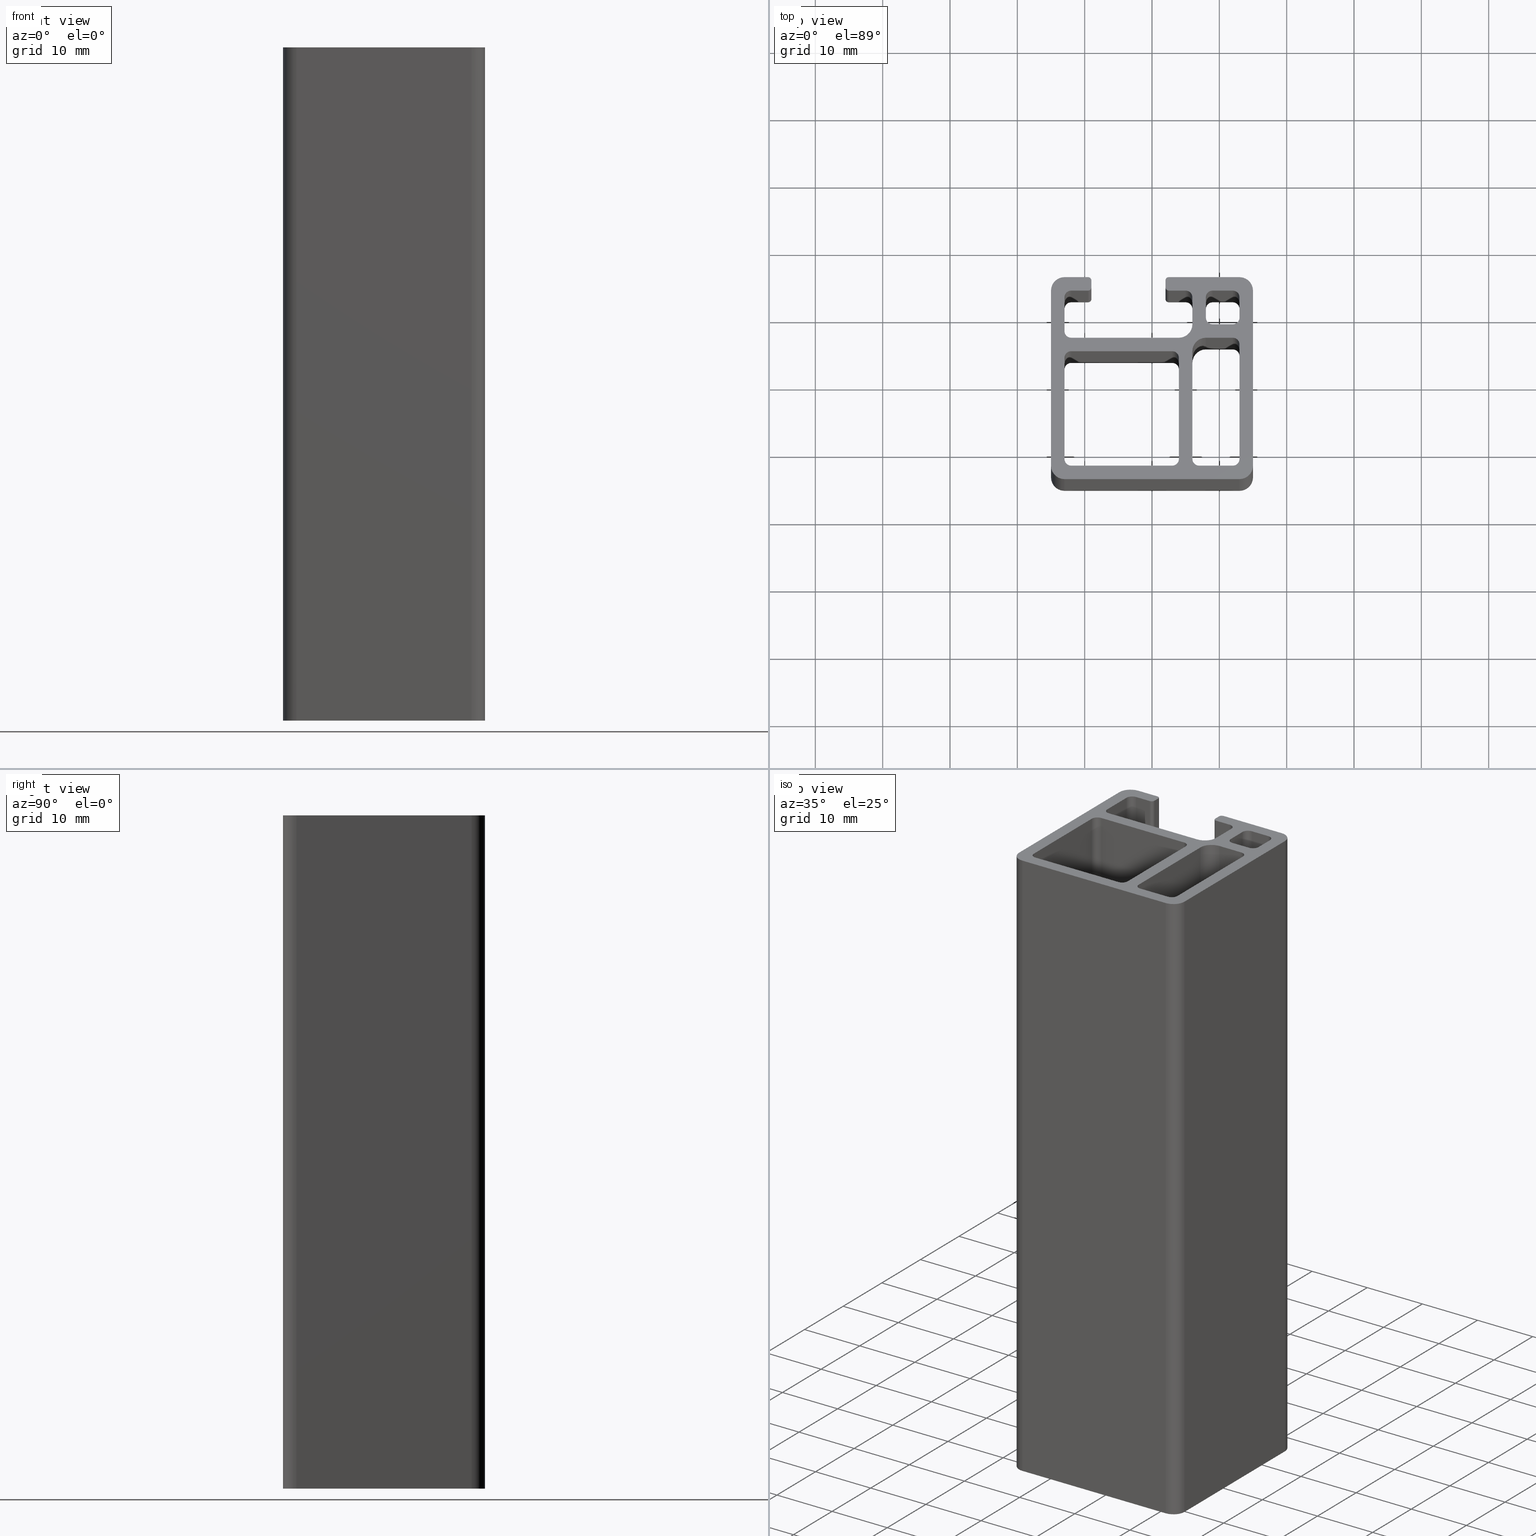
[diagram: canonical four-view strip — front | top / right | iso, engineering-drawing reading convention]
A machine part, canonical four-view strip (front | top / right | iso — engineering-drawing reading convention). The complete STEP part file that produces these views, byte-faithful:
ISO-10303-21;
HEADER;
/* Generated by software containing ST-Developer
 * from STEP Tools, Inc. (www.steptools.com) 
 */

FILE_DESCRIPTION(
/* description */ (''),
/* implementation_level */ '2;1');

FILE_NAME(
/* name */ 
'Q:\\Catalogo\\1_Profili Dierre\\Per Download Web\\Serie 30\\BPRDD0000
043.stp',
/* time_stamp */ '2017-07-11T14:30:43+02:00',
/* author */ ('fzagni'),
/* organization */ (''),
/* preprocessor_version */ 'ST-DEVELOPER v16.1',
/* originating_system */ 'Autodesk Inventor 2016',
/* authorisation */ '');

FILE_SCHEMA (('AUTOMOTIVE_DESIGN { 1 0 10303 214 3 1 1 }'));
ENDSEC;

DATA;
#10=MECHANICAL_DESIGN_GEOMETRIC_PRESENTATION_REPRESENTATION('',(#13),#1683);
#11=SHAPE_REPRESENTATION_RELATIONSHIP('SRR','None',#1692,#12);
#12=ADVANCED_BREP_SHAPE_REPRESENTATION('',(#14),#1682);
#13=STYLED_ITEM('',(#1701),#14);
#14=MANIFOLD_SOLID_BREP('Solido1',#995);
#15=FACE_BOUND('',#184,.T.);
#16=FACE_BOUND('',#185,.T.);
#17=FACE_BOUND('',#186,.T.);
#18=FACE_BOUND('',#196,.T.);
#19=FACE_BOUND('',#197,.T.);
#20=FACE_BOUND('',#198,.T.);
#21=CIRCLE('',#999,1.);
#22=CIRCLE('',#1000,1.);
#23=CIRCLE('',#1003,1.);
#24=CIRCLE('',#1004,1.);
#25=CIRCLE('',#1007,1.);
#26=CIRCLE('',#1008,1.);
#27=CIRCLE('',#1011,2.);
#28=CIRCLE('',#1012,2.);
#29=CIRCLE('',#1014,1.);
#30=CIRCLE('',#1015,1.);
#31=CIRCLE('',#1018,1.);
#32=CIRCLE('',#1019,1.);
#33=CIRCLE('',#1022,1.);
#34=CIRCLE('',#1023,1.);
#35=CIRCLE('',#1026,1.);
#36=CIRCLE('',#1027,1.);
#37=CIRCLE('',#1031,1.);
#38=CIRCLE('',#1032,1.);
#39=CIRCLE('',#1035,1.);
#40=CIRCLE('',#1036,1.);
#41=CIRCLE('',#1039,1.);
#42=CIRCLE('',#1040,1.);
#43=CIRCLE('',#1043,1.);
#44=CIRCLE('',#1044,1.);
#45=CIRCLE('',#1047,2.);
#46=CIRCLE('',#1048,2.);
#47=CIRCLE('',#1051,1.);
#48=CIRCLE('',#1052,1.);
#49=CIRCLE('',#1055,0.5);
#50=CIRCLE('',#1056,0.5);
#51=CIRCLE('',#1059,0.5);
#52=CIRCLE('',#1060,0.5);
#53=CIRCLE('',#1062,0.5);
#54=CIRCLE('',#1063,0.5);
#55=CIRCLE('',#1066,0.5);
#56=CIRCLE('',#1067,0.5);
#57=CIRCLE('',#1070,1.);
#58=CIRCLE('',#1071,1.);
#59=CIRCLE('',#1074,1.);
#60=CIRCLE('',#1075,1.);
#61=CIRCLE('',#1078,2.00000000847673);
#62=CIRCLE('',#1079,2.00000000847673);
#63=CIRCLE('',#1080,2.00000000847673);
#64=CIRCLE('',#1081,2.00000000847673);
#65=CIRCLE('',#1084,2.00000000847673);
#66=CIRCLE('',#1087,2.00000000847673);
#67=CIRCLE('',#1090,2.00000000847673);
#68=CIRCLE('',#1093,2.00000000847673);
#69=CYLINDRICAL_SURFACE('',#998,1.);
#70=CYLINDRICAL_SURFACE('',#1002,1.);
#71=CYLINDRICAL_SURFACE('',#1006,1.);
#72=CYLINDRICAL_SURFACE('',#1010,2.);
#73=CYLINDRICAL_SURFACE('',#1013,1.);
#74=CYLINDRICAL_SURFACE('',#1017,1.);
#75=CYLINDRICAL_SURFACE('',#1021,1.);
#76=CYLINDRICAL_SURFACE('',#1025,1.);
#77=CYLINDRICAL_SURFACE('',#1030,1.);
#78=CYLINDRICAL_SURFACE('',#1034,1.);
#79=CYLINDRICAL_SURFACE('',#1038,1.);
#80=CYLINDRICAL_SURFACE('',#1042,1.);
#81=CYLINDRICAL_SURFACE('',#1046,2.);
#82=CYLINDRICAL_SURFACE('',#1050,1.);
#83=CYLINDRICAL_SURFACE('',#1054,0.5);
#84=CYLINDRICAL_SURFACE('',#1058,0.5);
#85=CYLINDRICAL_SURFACE('',#1061,0.5);
#86=CYLINDRICAL_SURFACE('',#1065,0.5);
#87=CYLINDRICAL_SURFACE('',#1069,1.);
#88=CYLINDRICAL_SURFACE('',#1073,1.);
#89=CYLINDRICAL_SURFACE('',#1083,2.00000000847673);
#90=CYLINDRICAL_SURFACE('',#1086,2.00000000847673);
#91=CYLINDRICAL_SURFACE('',#1089,2.00000000847673);
#92=CYLINDRICAL_SURFACE('',#1092,2.00000000847673);
#93=FACE_OUTER_BOUND('',#143,.T.);
#94=FACE_OUTER_BOUND('',#144,.T.);
#95=FACE_OUTER_BOUND('',#145,.T.);
#96=FACE_OUTER_BOUND('',#146,.T.);
#97=FACE_OUTER_BOUND('',#147,.T.);
#98=FACE_OUTER_BOUND('',#148,.T.);
#99=FACE_OUTER_BOUND('',#149,.T.);
#100=FACE_OUTER_BOUND('',#150,.T.);
#101=FACE_OUTER_BOUND('',#151,.T.);
#102=FACE_OUTER_BOUND('',#152,.T.);
#103=FACE_OUTER_BOUND('',#153,.T.);
#104=FACE_OUTER_BOUND('',#154,.T.);
#105=FACE_OUTER_BOUND('',#155,.T.);
#106=FACE_OUTER_BOUND('',#156,.T.);
#107=FACE_OUTER_BOUND('',#157,.T.);
#108=FACE_OUTER_BOUND('',#158,.T.);
#109=FACE_OUTER_BOUND('',#159,.T.);
#110=FACE_OUTER_BOUND('',#160,.T.);
#111=FACE_OUTER_BOUND('',#161,.T.);
#112=FACE_OUTER_BOUND('',#162,.T.);
#113=FACE_OUTER_BOUND('',#163,.T.);
#114=FACE_OUTER_BOUND('',#164,.T.);
#115=FACE_OUTER_BOUND('',#165,.T.);
#116=FACE_OUTER_BOUND('',#166,.T.);
#117=FACE_OUTER_BOUND('',#167,.T.);
#118=FACE_OUTER_BOUND('',#168,.T.);
#119=FACE_OUTER_BOUND('',#169,.T.);
#120=FACE_OUTER_BOUND('',#170,.T.);
#121=FACE_OUTER_BOUND('',#171,.T.);
#122=FACE_OUTER_BOUND('',#172,.T.);
#123=FACE_OUTER_BOUND('',#173,.T.);
#124=FACE_OUTER_BOUND('',#174,.T.);
#125=FACE_OUTER_BOUND('',#175,.T.);
#126=FACE_OUTER_BOUND('',#176,.T.);
#127=FACE_OUTER_BOUND('',#177,.T.);
#128=FACE_OUTER_BOUND('',#178,.T.);
#129=FACE_OUTER_BOUND('',#179,.T.);
#130=FACE_OUTER_BOUND('',#180,.T.);
#131=FACE_OUTER_BOUND('',#181,.T.);
#132=FACE_OUTER_BOUND('',#182,.T.);
#133=FACE_OUTER_BOUND('',#183,.T.);
#134=FACE_OUTER_BOUND('',#187,.T.);
#135=FACE_OUTER_BOUND('',#188,.T.);
#136=FACE_OUTER_BOUND('',#189,.T.);
#137=FACE_OUTER_BOUND('',#190,.T.);
#138=FACE_OUTER_BOUND('',#191,.T.);
#139=FACE_OUTER_BOUND('',#192,.T.);
#140=FACE_OUTER_BOUND('',#193,.T.);
#141=FACE_OUTER_BOUND('',#194,.T.);
#142=FACE_OUTER_BOUND('',#195,.T.);
#143=EDGE_LOOP('',(#631,#632,#633,#634));
#144=EDGE_LOOP('',(#635,#636,#637,#638));
#145=EDGE_LOOP('',(#639,#640,#641,#642));
#146=EDGE_LOOP('',(#643,#644,#645,#646));
#147=EDGE_LOOP('',(#647,#648,#649,#650));
#148=EDGE_LOOP('',(#651,#652,#653,#654));
#149=EDGE_LOOP('',(#655,#656,#657,#658));
#150=EDGE_LOOP('',(#659,#660,#661,#662));
#151=EDGE_LOOP('',(#663,#664,#665,#666));
#152=EDGE_LOOP('',(#667,#668,#669,#670));
#153=EDGE_LOOP('',(#671,#672,#673,#674));
#154=EDGE_LOOP('',(#675,#676,#677,#678));
#155=EDGE_LOOP('',(#679,#680,#681,#682));
#156=EDGE_LOOP('',(#683,#684,#685,#686));
#157=EDGE_LOOP('',(#687,#688,#689,#690));
#158=EDGE_LOOP('',(#691,#692,#693,#694));
#159=EDGE_LOOP('',(#695,#696,#697,#698));
#160=EDGE_LOOP('',(#699,#700,#701,#702));
#161=EDGE_LOOP('',(#703,#704,#705,#706));
#162=EDGE_LOOP('',(#707,#708,#709,#710));
#163=EDGE_LOOP('',(#711,#712,#713,#714));
#164=EDGE_LOOP('',(#715,#716,#717,#718));
#165=EDGE_LOOP('',(#719,#720,#721,#722));
#166=EDGE_LOOP('',(#723,#724,#725,#726));
#167=EDGE_LOOP('',(#727,#728,#729,#730));
#168=EDGE_LOOP('',(#731,#732,#733,#734));
#169=EDGE_LOOP('',(#735,#736,#737,#738));
#170=EDGE_LOOP('',(#739,#740,#741,#742));
#171=EDGE_LOOP('',(#743,#744,#745,#746));
#172=EDGE_LOOP('',(#747,#748,#749,#750));
#173=EDGE_LOOP('',(#751,#752,#753,#754));
#174=EDGE_LOOP('',(#755,#756,#757,#758));
#175=EDGE_LOOP('',(#759,#760,#761,#762));
#176=EDGE_LOOP('',(#763,#764,#765,#766));
#177=EDGE_LOOP('',(#767,#768,#769,#770));
#178=EDGE_LOOP('',(#771,#772,#773,#774));
#179=EDGE_LOOP('',(#775,#776,#777,#778));
#180=EDGE_LOOP('',(#779,#780,#781,#782));
#181=EDGE_LOOP('',(#783,#784,#785,#786));
#182=EDGE_LOOP('',(#787,#788,#789,#790));
#183=EDGE_LOOP('',(#791,#792,#793,#794,#795,#796,#797,#798,#799,#800,#801,
#802,#803,#804,#805,#806,#807,#808,#809,#810,#811,#812,#813,#814));
#184=EDGE_LOOP('',(#815,#816,#817,#818,#819,#820,#821,#822));
#185=EDGE_LOOP('',(#823,#824,#825,#826,#827,#828,#829,#830));
#186=EDGE_LOOP('',(#831,#832,#833,#834,#835,#836,#837,#838));
#187=EDGE_LOOP('',(#839,#840,#841,#842));
#188=EDGE_LOOP('',(#843,#844,#845,#846));
#189=EDGE_LOOP('',(#847,#848,#849,#850));
#190=EDGE_LOOP('',(#851,#852,#853,#854));
#191=EDGE_LOOP('',(#855,#856,#857,#858));
#192=EDGE_LOOP('',(#859,#860,#861,#862));
#193=EDGE_LOOP('',(#863,#864,#865,#866));
#194=EDGE_LOOP('',(#867,#868,#869,#870));
#195=EDGE_LOOP('',(#871,#872,#873,#874,#875,#876,#877,#878,#879,#880,#881,
#882,#883,#884,#885,#886,#887,#888,#889,#890,#891,#892,#893,#894));
#196=EDGE_LOOP('',(#895,#896,#897,#898,#899,#900,#901,#902));
#197=EDGE_LOOP('',(#903,#904,#905,#906,#907,#908,#909,#910));
#198=EDGE_LOOP('',(#911,#912,#913,#914,#915,#916,#917,#918));
#199=LINE('',#1393,#295);
#200=LINE('',#1395,#296);
#201=LINE('',#1397,#297);
#202=LINE('',#1398,#298);
#203=LINE('',#1404,#299);
#204=LINE('',#1407,#300);
#205=LINE('',#1409,#301);
#206=LINE('',#1410,#302);
#207=LINE('',#1416,#303);
#208=LINE('',#1419,#304);
#209=LINE('',#1421,#305);
#210=LINE('',#1422,#306);
#211=LINE('',#1428,#307);
#212=LINE('',#1431,#308);
#213=LINE('',#1433,#309);
#214=LINE('',#1434,#310);
#215=LINE('',#1443,#311);
#216=LINE('',#1446,#312);
#217=LINE('',#1449,#313);
#218=LINE('',#1451,#314);
#219=LINE('',#1452,#315);
#220=LINE('',#1457,#316);
#221=LINE('',#1461,#317);
#222=LINE('',#1463,#318);
#223=LINE('',#1464,#319);
#224=LINE('',#1469,#320);
#225=LINE('',#1473,#321);
#226=LINE('',#1475,#322);
#227=LINE('',#1476,#323);
#228=LINE('',#1481,#324);
#229=LINE('',#1484,#325);
#230=LINE('',#1485,#326);
#231=LINE('',#1489,#327);
#232=LINE('',#1491,#328);
#233=LINE('',#1493,#329);
#234=LINE('',#1494,#330);
#235=LINE('',#1500,#331);
#236=LINE('',#1503,#332);
#237=LINE('',#1505,#333);
#238=LINE('',#1506,#334);
#239=LINE('',#1512,#335);
#240=LINE('',#1515,#336);
#241=LINE('',#1517,#337);
#242=LINE('',#1518,#338);
#243=LINE('',#1524,#339);
#244=LINE('',#1527,#340);
#245=LINE('',#1529,#341);
#246=LINE('',#1530,#342);
#247=LINE('',#1537,#343);
#248=LINE('',#1539,#344);
#249=LINE('',#1541,#345);
#250=LINE('',#1542,#346);
#251=LINE('',#1547,#347);
#252=LINE('',#1551,#348);
#253=LINE('',#1553,#349);
#254=LINE('',#1554,#350);
#255=LINE('',#1559,#351);
#256=LINE('',#1563,#352);
#257=LINE('',#1565,#353);
#258=LINE('',#1566,#354);
#259=LINE('',#1571,#355);
#260=LINE('',#1575,#356);
#261=LINE('',#1577,#357);
#262=LINE('',#1578,#358);
#263=LINE('',#1583,#359);
#264=LINE('',#1590,#360);
#265=LINE('',#1593,#361);
#266=LINE('',#1596,#362);
#267=LINE('',#1598,#363);
#268=LINE('',#1599,#364);
#269=LINE('',#1604,#365);
#270=LINE('',#1608,#366);
#271=LINE('',#1610,#367);
#272=LINE('',#1611,#368);
#273=LINE('',#1616,#369);
#274=LINE('',#1620,#370);
#275=LINE('',#1622,#371);
#276=LINE('',#1623,#372);
#277=LINE('',#1629,#373);
#278=LINE('',#1631,#374);
#279=LINE('',#1632,#375);
#280=LINE('',#1637,#376);
#281=LINE('',#1641,#377);
#282=LINE('',#1645,#378);
#283=LINE('',#1648,#379);
#284=LINE('',#1651,#380);
#285=LINE('',#1652,#381);
#286=LINE('',#1656,#382);
#287=LINE('',#1659,#383);
#288=LINE('',#1660,#384);
#289=LINE('',#1664,#385);
#290=LINE('',#1667,#386);
#291=LINE('',#1668,#387);
#292=LINE('',#1672,#388);
#293=LINE('',#1675,#389);
#294=LINE('',#1676,#390);
#295=VECTOR('',#1099,4.);
#296=VECTOR('',#1100,100.);
#297=VECTOR('',#1101,4.);
#298=VECTOR('',#1102,100.);
#299=VECTOR('',#1109,100.);
#300=VECTOR('',#1112,17.);
#301=VECTOR('',#1113,17.);
#302=VECTOR('',#1114,100.);
#303=VECTOR('',#1121,100.);
#304=VECTOR('',#1124,5.);
#305=VECTOR('',#1125,5.);
#306=VECTOR('',#1126,100.);
#307=VECTOR('',#1133,100.);
#308=VECTOR('',#1136,16.);
#309=VECTOR('',#1137,16.);
#310=VECTOR('',#1138,100.);
#311=VECTOR('',#1149,100.);
#312=VECTOR('',#1152,100.);
#313=VECTOR('',#1155,15.);
#314=VECTOR('',#1156,100.);
#315=VECTOR('',#1157,15.);
#316=VECTOR('',#1162,100.);
#317=VECTOR('',#1167,15.);
#318=VECTOR('',#1168,100.);
#319=VECTOR('',#1169,15.);
#320=VECTOR('',#1174,100.);
#321=VECTOR('',#1179,15.);
#322=VECTOR('',#1180,100.);
#323=VECTOR('',#1181,15.);
#324=VECTOR('',#1186,100.);
#325=VECTOR('',#1191,15.);
#326=VECTOR('',#1192,15.);
#327=VECTOR('',#1195,3.);
#328=VECTOR('',#1196,100.);
#329=VECTOR('',#1197,3.);
#330=VECTOR('',#1198,100.);
#331=VECTOR('',#1205,100.);
#332=VECTOR('',#1208,2.99999999999999);
#333=VECTOR('',#1209,2.99999999999999);
#334=VECTOR('',#1210,100.);
#335=VECTOR('',#1217,100.);
#336=VECTOR('',#1220,3.);
#337=VECTOR('',#1221,3.);
#338=VECTOR('',#1222,100.);
#339=VECTOR('',#1229,100.);
#340=VECTOR('',#1232,3.);
#341=VECTOR('',#1233,3.);
#342=VECTOR('',#1234,100.);
#343=VECTOR('',#1243,16.);
#344=VECTOR('',#1244,100.);
#345=VECTOR('',#1245,16.);
#346=VECTOR('',#1246,100.);
#347=VECTOR('',#1251,100.);
#348=VECTOR('',#1256,4.);
#349=VECTOR('',#1257,100.);
#350=VECTOR('',#1258,4.);
#351=VECTOR('',#1263,100.);
#352=VECTOR('',#1268,2.5);
#353=VECTOR('',#1269,100.);
#354=VECTOR('',#1270,2.5);
#355=VECTOR('',#1275,100.);
#356=VECTOR('',#1280,0.999999999999999);
#357=VECTOR('',#1281,100.);
#358=VECTOR('',#1282,0.999999999999999);
#359=VECTOR('',#1287,100.);
#360=VECTOR('',#1294,100.);
#361=VECTOR('',#1297,100.);
#362=VECTOR('',#1300,0.999999999999999);
#363=VECTOR('',#1301,100.);
#364=VECTOR('',#1302,0.999999999999999);
#365=VECTOR('',#1307,100.);
#366=VECTOR('',#1312,2.5);
#367=VECTOR('',#1313,100.);
#368=VECTOR('',#1314,2.5);
#369=VECTOR('',#1319,100.);
#370=VECTOR('',#1324,5.);
#371=VECTOR('',#1325,100.);
#372=VECTOR('',#1326,5.);
#373=VECTOR('',#1335,10.4999999917376);
#374=VECTOR('',#1336,100.);
#375=VECTOR('',#1337,10.4999999917376);
#376=VECTOR('',#1342,25.9999999739653);
#377=VECTOR('',#1345,25.9999999830465);
#378=VECTOR('',#1348,25.9999999741351);
#379=VECTOR('',#1351,3.49999999152327);
#380=VECTOR('',#1354,100.);
#381=VECTOR('',#1355,3.49999999152327);
#382=VECTOR('',#1360,100.);
#383=VECTOR('',#1363,25.9999999739653);
#384=VECTOR('',#1364,100.);
#385=VECTOR('',#1369,100.);
#386=VECTOR('',#1372,25.9999999830465);
#387=VECTOR('',#1373,100.);
#388=VECTOR('',#1378,100.);
#389=VECTOR('',#1381,25.9999999741351);
#390=VECTOR('',#1382,100.);
#391=VERTEX_POINT('',#1391);
#392=VERTEX_POINT('',#1392);
#393=VERTEX_POINT('',#1394);
#394=VERTEX_POINT('',#1396);
#395=VERTEX_POINT('',#1400);
#396=VERTEX_POINT('',#1402);
#397=VERTEX_POINT('',#1406);
#398=VERTEX_POINT('',#1408);
#399=VERTEX_POINT('',#1412);
#400=VERTEX_POINT('',#1414);
#401=VERTEX_POINT('',#1418);
#402=VERTEX_POINT('',#1420);
#403=VERTEX_POINT('',#1424);
#404=VERTEX_POINT('',#1426);
#405=VERTEX_POINT('',#1430);
#406=VERTEX_POINT('',#1432);
#407=VERTEX_POINT('',#1439);
#408=VERTEX_POINT('',#1440);
#409=VERTEX_POINT('',#1442);
#410=VERTEX_POINT('',#1444);
#411=VERTEX_POINT('',#1448);
#412=VERTEX_POINT('',#1450);
#413=VERTEX_POINT('',#1454);
#414=VERTEX_POINT('',#1456);
#415=VERTEX_POINT('',#1460);
#416=VERTEX_POINT('',#1462);
#417=VERTEX_POINT('',#1466);
#418=VERTEX_POINT('',#1468);
#419=VERTEX_POINT('',#1472);
#420=VERTEX_POINT('',#1474);
#421=VERTEX_POINT('',#1478);
#422=VERTEX_POINT('',#1480);
#423=VERTEX_POINT('',#1487);
#424=VERTEX_POINT('',#1488);
#425=VERTEX_POINT('',#1490);
#426=VERTEX_POINT('',#1492);
#427=VERTEX_POINT('',#1496);
#428=VERTEX_POINT('',#1498);
#429=VERTEX_POINT('',#1502);
#430=VERTEX_POINT('',#1504);
#431=VERTEX_POINT('',#1508);
#432=VERTEX_POINT('',#1510);
#433=VERTEX_POINT('',#1514);
#434=VERTEX_POINT('',#1516);
#435=VERTEX_POINT('',#1520);
#436=VERTEX_POINT('',#1522);
#437=VERTEX_POINT('',#1526);
#438=VERTEX_POINT('',#1528);
#439=VERTEX_POINT('',#1535);
#440=VERTEX_POINT('',#1536);
#441=VERTEX_POINT('',#1538);
#442=VERTEX_POINT('',#1540);
#443=VERTEX_POINT('',#1544);
#444=VERTEX_POINT('',#1546);
#445=VERTEX_POINT('',#1550);
#446=VERTEX_POINT('',#1552);
#447=VERTEX_POINT('',#1556);
#448=VERTEX_POINT('',#1558);
#449=VERTEX_POINT('',#1562);
#450=VERTEX_POINT('',#1564);
#451=VERTEX_POINT('',#1568);
#452=VERTEX_POINT('',#1570);
#453=VERTEX_POINT('',#1574);
#454=VERTEX_POINT('',#1576);
#455=VERTEX_POINT('',#1580);
#456=VERTEX_POINT('',#1582);
#457=VERTEX_POINT('',#1586);
#458=VERTEX_POINT('',#1587);
#459=VERTEX_POINT('',#1589);
#460=VERTEX_POINT('',#1591);
#461=VERTEX_POINT('',#1595);
#462=VERTEX_POINT('',#1597);
#463=VERTEX_POINT('',#1601);
#464=VERTEX_POINT('',#1603);
#465=VERTEX_POINT('',#1607);
#466=VERTEX_POINT('',#1609);
#467=VERTEX_POINT('',#1613);
#468=VERTEX_POINT('',#1615);
#469=VERTEX_POINT('',#1619);
#470=VERTEX_POINT('',#1621);
#471=VERTEX_POINT('',#1628);
#472=VERTEX_POINT('',#1630);
#473=VERTEX_POINT('',#1634);
#474=VERTEX_POINT('',#1636);
#475=VERTEX_POINT('',#1638);
#476=VERTEX_POINT('',#1640);
#477=VERTEX_POINT('',#1642);
#478=VERTEX_POINT('',#1644);
#479=VERTEX_POINT('',#1646);
#480=VERTEX_POINT('',#1650);
#481=VERTEX_POINT('',#1654);
#482=VERTEX_POINT('',#1658);
#483=VERTEX_POINT('',#1662);
#484=VERTEX_POINT('',#1666);
#485=VERTEX_POINT('',#1670);
#486=VERTEX_POINT('',#1674);
#487=EDGE_CURVE('',#391,#392,#199,.T.);
#488=EDGE_CURVE('',#393,#391,#200,.T.);
#489=EDGE_CURVE('',#394,#393,#201,.T.);
#490=EDGE_CURVE('',#394,#392,#202,.T.);
#491=EDGE_CURVE('',#392,#395,#21,.T.);
#492=EDGE_CURVE('',#396,#394,#22,.T.);
#493=EDGE_CURVE('',#396,#395,#203,.T.);
#494=EDGE_CURVE('',#395,#397,#204,.T.);
#495=EDGE_CURVE('',#398,#396,#205,.T.);
#496=EDGE_CURVE('',#398,#397,#206,.T.);
#497=EDGE_CURVE('',#397,#399,#23,.T.);
#498=EDGE_CURVE('',#400,#398,#24,.T.);
#499=EDGE_CURVE('',#400,#399,#207,.T.);
#500=EDGE_CURVE('',#399,#401,#208,.T.);
#501=EDGE_CURVE('',#402,#400,#209,.T.);
#502=EDGE_CURVE('',#402,#401,#210,.T.);
#503=EDGE_CURVE('',#401,#403,#25,.T.);
#504=EDGE_CURVE('',#404,#402,#26,.T.);
#505=EDGE_CURVE('',#404,#403,#211,.T.);
#506=EDGE_CURVE('',#403,#405,#212,.T.);
#507=EDGE_CURVE('',#406,#404,#213,.T.);
#508=EDGE_CURVE('',#406,#405,#214,.T.);
#509=EDGE_CURVE('',#405,#391,#27,.T.);
#510=EDGE_CURVE('',#393,#406,#28,.T.);
#511=EDGE_CURVE('',#407,#408,#29,.T.);
#512=EDGE_CURVE('',#409,#407,#215,.T.);
#513=EDGE_CURVE('',#410,#409,#30,.T.);
#514=EDGE_CURVE('',#410,#408,#216,.T.);
#515=EDGE_CURVE('',#411,#407,#217,.T.);
#516=EDGE_CURVE('',#412,#411,#218,.T.);
#517=EDGE_CURVE('',#409,#412,#219,.T.);
#518=EDGE_CURVE('',#413,#411,#31,.T.);
#519=EDGE_CURVE('',#414,#413,#220,.T.);
#520=EDGE_CURVE('',#412,#414,#32,.T.);
#521=EDGE_CURVE('',#415,#413,#221,.T.);
#522=EDGE_CURVE('',#416,#415,#222,.T.);
#523=EDGE_CURVE('',#414,#416,#223,.T.);
#524=EDGE_CURVE('',#417,#415,#33,.T.);
#525=EDGE_CURVE('',#418,#417,#224,.T.);
#526=EDGE_CURVE('',#416,#418,#34,.T.);
#527=EDGE_CURVE('',#419,#417,#225,.T.);
#528=EDGE_CURVE('',#420,#419,#226,.T.);
#529=EDGE_CURVE('',#418,#420,#227,.T.);
#530=EDGE_CURVE('',#421,#419,#35,.T.);
#531=EDGE_CURVE('',#422,#421,#228,.T.);
#532=EDGE_CURVE('',#420,#422,#36,.T.);
#533=EDGE_CURVE('',#408,#421,#229,.T.);
#534=EDGE_CURVE('',#422,#410,#230,.T.);
#535=EDGE_CURVE('',#423,#424,#231,.T.);
#536=EDGE_CURVE('',#425,#423,#232,.T.);
#537=EDGE_CURVE('',#426,#425,#233,.T.);
#538=EDGE_CURVE('',#426,#424,#234,.T.);
#539=EDGE_CURVE('',#424,#427,#37,.T.);
#540=EDGE_CURVE('',#428,#426,#38,.T.);
#541=EDGE_CURVE('',#428,#427,#235,.T.);
#542=EDGE_CURVE('',#427,#429,#236,.T.);
#543=EDGE_CURVE('',#430,#428,#237,.T.);
#544=EDGE_CURVE('',#430,#429,#238,.T.);
#545=EDGE_CURVE('',#429,#431,#39,.T.);
#546=EDGE_CURVE('',#432,#430,#40,.T.);
#547=EDGE_CURVE('',#432,#431,#239,.T.);
#548=EDGE_CURVE('',#431,#433,#240,.T.);
#549=EDGE_CURVE('',#434,#432,#241,.T.);
#550=EDGE_CURVE('',#434,#433,#242,.T.);
#551=EDGE_CURVE('',#433,#435,#41,.T.);
#552=EDGE_CURVE('',#436,#434,#42,.T.);
#553=EDGE_CURVE('',#436,#435,#243,.T.);
#554=EDGE_CURVE('',#435,#437,#244,.T.);
#555=EDGE_CURVE('',#438,#436,#245,.T.);
#556=EDGE_CURVE('',#438,#437,#246,.T.);
#557=EDGE_CURVE('',#437,#423,#43,.T.);
#558=EDGE_CURVE('',#425,#438,#44,.T.);
#559=EDGE_CURVE('',#439,#440,#247,.T.);
#560=EDGE_CURVE('',#441,#439,#248,.T.);
#561=EDGE_CURVE('',#442,#441,#249,.T.);
#562=EDGE_CURVE('',#442,#440,#250,.T.);
#563=EDGE_CURVE('',#443,#439,#45,.T.);
#564=EDGE_CURVE('',#444,#443,#251,.T.);
#565=EDGE_CURVE('',#441,#444,#46,.T.);
#566=EDGE_CURVE('',#445,#443,#252,.T.);
#567=EDGE_CURVE('',#446,#445,#253,.T.);
#568=EDGE_CURVE('',#444,#446,#254,.T.);
#569=EDGE_CURVE('',#447,#445,#47,.T.);
#570=EDGE_CURVE('',#448,#447,#255,.T.);
#571=EDGE_CURVE('',#446,#448,#48,.T.);
#572=EDGE_CURVE('',#449,#447,#256,.T.);
#573=EDGE_CURVE('',#450,#449,#257,.T.);
#574=EDGE_CURVE('',#448,#450,#258,.T.);
#575=EDGE_CURVE('',#451,#449,#49,.T.);
#576=EDGE_CURVE('',#452,#451,#259,.T.);
#577=EDGE_CURVE('',#450,#452,#50,.T.);
#578=EDGE_CURVE('',#453,#451,#260,.T.);
#579=EDGE_CURVE('',#454,#453,#261,.T.);
#580=EDGE_CURVE('',#452,#454,#262,.T.);
#581=EDGE_CURVE('',#455,#453,#51,.T.);
#582=EDGE_CURVE('',#455,#456,#263,.T.);
#583=EDGE_CURVE('',#454,#456,#52,.T.);
#584=EDGE_CURVE('',#457,#458,#53,.T.);
#585=EDGE_CURVE('',#459,#457,#264,.T.);
#586=EDGE_CURVE('',#460,#459,#54,.T.);
#587=EDGE_CURVE('',#458,#460,#265,.T.);
#588=EDGE_CURVE('',#461,#457,#266,.T.);
#589=EDGE_CURVE('',#462,#461,#267,.T.);
#590=EDGE_CURVE('',#459,#462,#268,.T.);
#591=EDGE_CURVE('',#463,#461,#55,.T.);
#592=EDGE_CURVE('',#464,#463,#269,.T.);
#593=EDGE_CURVE('',#462,#464,#56,.T.);
#594=EDGE_CURVE('',#465,#463,#270,.T.);
#595=EDGE_CURVE('',#466,#465,#271,.T.);
#596=EDGE_CURVE('',#464,#466,#272,.T.);
#597=EDGE_CURVE('',#467,#465,#57,.T.);
#598=EDGE_CURVE('',#468,#467,#273,.T.);
#599=EDGE_CURVE('',#466,#468,#58,.T.);
#600=EDGE_CURVE('',#469,#467,#274,.T.);
#601=EDGE_CURVE('',#470,#469,#275,.T.);
#602=EDGE_CURVE('',#468,#470,#276,.T.);
#603=EDGE_CURVE('',#440,#469,#59,.T.);
#604=EDGE_CURVE('',#470,#442,#60,.T.);
#605=EDGE_CURVE('',#455,#471,#277,.T.);
#606=EDGE_CURVE('',#472,#471,#278,.T.);
#607=EDGE_CURVE('',#456,#472,#279,.T.);
#608=EDGE_CURVE('',#472,#473,#61,.T.);
#609=EDGE_CURVE('',#473,#474,#280,.T.);
#610=EDGE_CURVE('',#474,#475,#62,.T.);
#611=EDGE_CURVE('',#475,#476,#281,.T.);
#612=EDGE_CURVE('',#476,#477,#63,.T.);
#613=EDGE_CURVE('',#477,#478,#282,.T.);
#614=EDGE_CURVE('',#478,#479,#64,.T.);
#615=EDGE_CURVE('',#479,#460,#283,.T.);
#616=EDGE_CURVE('',#479,#480,#284,.T.);
#617=EDGE_CURVE('',#480,#458,#285,.T.);
#618=EDGE_CURVE('',#471,#481,#65,.T.);
#619=EDGE_CURVE('',#473,#481,#286,.T.);
#620=EDGE_CURVE('',#481,#482,#287,.T.);
#621=EDGE_CURVE('',#474,#482,#288,.T.);
#622=EDGE_CURVE('',#482,#483,#66,.T.);
#623=EDGE_CURVE('',#475,#483,#289,.T.);
#624=EDGE_CURVE('',#483,#484,#290,.T.);
#625=EDGE_CURVE('',#476,#484,#291,.T.);
#626=EDGE_CURVE('',#484,#485,#67,.T.);
#627=EDGE_CURVE('',#477,#485,#292,.T.);
#628=EDGE_CURVE('',#485,#486,#293,.T.);
#629=EDGE_CURVE('',#478,#486,#294,.T.);
#630=EDGE_CURVE('',#486,#480,#68,.T.);
#631=ORIENTED_EDGE('',*,*,#487,.F.);
#632=ORIENTED_EDGE('',*,*,#488,.F.);
#633=ORIENTED_EDGE('',*,*,#489,.F.);
#634=ORIENTED_EDGE('',*,*,#490,.T.);
#635=ORIENTED_EDGE('',*,*,#491,.F.);
#636=ORIENTED_EDGE('',*,*,#490,.F.);
#637=ORIENTED_EDGE('',*,*,#492,.F.);
#638=ORIENTED_EDGE('',*,*,#493,.T.);
#639=ORIENTED_EDGE('',*,*,#494,.F.);
#640=ORIENTED_EDGE('',*,*,#493,.F.);
#641=ORIENTED_EDGE('',*,*,#495,.F.);
#642=ORIENTED_EDGE('',*,*,#496,.T.);
#643=ORIENTED_EDGE('',*,*,#497,.F.);
#644=ORIENTED_EDGE('',*,*,#496,.F.);
#645=ORIENTED_EDGE('',*,*,#498,.F.);
#646=ORIENTED_EDGE('',*,*,#499,.T.);
#647=ORIENTED_EDGE('',*,*,#500,.F.);
#648=ORIENTED_EDGE('',*,*,#499,.F.);
#649=ORIENTED_EDGE('',*,*,#501,.F.);
#650=ORIENTED_EDGE('',*,*,#502,.T.);
#651=ORIENTED_EDGE('',*,*,#503,.F.);
#652=ORIENTED_EDGE('',*,*,#502,.F.);
#653=ORIENTED_EDGE('',*,*,#504,.F.);
#654=ORIENTED_EDGE('',*,*,#505,.T.);
#655=ORIENTED_EDGE('',*,*,#506,.F.);
#656=ORIENTED_EDGE('',*,*,#505,.F.);
#657=ORIENTED_EDGE('',*,*,#507,.F.);
#658=ORIENTED_EDGE('',*,*,#508,.T.);
#659=ORIENTED_EDGE('',*,*,#509,.F.);
#660=ORIENTED_EDGE('',*,*,#508,.F.);
#661=ORIENTED_EDGE('',*,*,#510,.F.);
#662=ORIENTED_EDGE('',*,*,#488,.T.);
#663=ORIENTED_EDGE('',*,*,#511,.F.);
#664=ORIENTED_EDGE('',*,*,#512,.F.);
#665=ORIENTED_EDGE('',*,*,#513,.F.);
#666=ORIENTED_EDGE('',*,*,#514,.T.);
#667=ORIENTED_EDGE('',*,*,#515,.F.);
#668=ORIENTED_EDGE('',*,*,#516,.F.);
#669=ORIENTED_EDGE('',*,*,#517,.F.);
#670=ORIENTED_EDGE('',*,*,#512,.T.);
#671=ORIENTED_EDGE('',*,*,#518,.F.);
#672=ORIENTED_EDGE('',*,*,#519,.F.);
#673=ORIENTED_EDGE('',*,*,#520,.F.);
#674=ORIENTED_EDGE('',*,*,#516,.T.);
#675=ORIENTED_EDGE('',*,*,#521,.F.);
#676=ORIENTED_EDGE('',*,*,#522,.F.);
#677=ORIENTED_EDGE('',*,*,#523,.F.);
#678=ORIENTED_EDGE('',*,*,#519,.T.);
#679=ORIENTED_EDGE('',*,*,#524,.F.);
#680=ORIENTED_EDGE('',*,*,#525,.F.);
#681=ORIENTED_EDGE('',*,*,#526,.F.);
#682=ORIENTED_EDGE('',*,*,#522,.T.);
#683=ORIENTED_EDGE('',*,*,#527,.F.);
#684=ORIENTED_EDGE('',*,*,#528,.F.);
#685=ORIENTED_EDGE('',*,*,#529,.F.);
#686=ORIENTED_EDGE('',*,*,#525,.T.);
#687=ORIENTED_EDGE('',*,*,#530,.F.);
#688=ORIENTED_EDGE('',*,*,#531,.F.);
#689=ORIENTED_EDGE('',*,*,#532,.F.);
#690=ORIENTED_EDGE('',*,*,#528,.T.);
#691=ORIENTED_EDGE('',*,*,#533,.F.);
#692=ORIENTED_EDGE('',*,*,#514,.F.);
#693=ORIENTED_EDGE('',*,*,#534,.F.);
#694=ORIENTED_EDGE('',*,*,#531,.T.);
#695=ORIENTED_EDGE('',*,*,#535,.F.);
#696=ORIENTED_EDGE('',*,*,#536,.F.);
#697=ORIENTED_EDGE('',*,*,#537,.F.);
#698=ORIENTED_EDGE('',*,*,#538,.T.);
#699=ORIENTED_EDGE('',*,*,#539,.F.);
#700=ORIENTED_EDGE('',*,*,#538,.F.);
#701=ORIENTED_EDGE('',*,*,#540,.F.);
#702=ORIENTED_EDGE('',*,*,#541,.T.);
#703=ORIENTED_EDGE('',*,*,#542,.F.);
#704=ORIENTED_EDGE('',*,*,#541,.F.);
#705=ORIENTED_EDGE('',*,*,#543,.F.);
#706=ORIENTED_EDGE('',*,*,#544,.T.);
#707=ORIENTED_EDGE('',*,*,#545,.F.);
#708=ORIENTED_EDGE('',*,*,#544,.F.);
#709=ORIENTED_EDGE('',*,*,#546,.F.);
#710=ORIENTED_EDGE('',*,*,#547,.T.);
#711=ORIENTED_EDGE('',*,*,#548,.F.);
#712=ORIENTED_EDGE('',*,*,#547,.F.);
#713=ORIENTED_EDGE('',*,*,#549,.F.);
#714=ORIENTED_EDGE('',*,*,#550,.T.);
#715=ORIENTED_EDGE('',*,*,#551,.F.);
#716=ORIENTED_EDGE('',*,*,#550,.F.);
#717=ORIENTED_EDGE('',*,*,#552,.F.);
#718=ORIENTED_EDGE('',*,*,#553,.T.);
#719=ORIENTED_EDGE('',*,*,#554,.F.);
#720=ORIENTED_EDGE('',*,*,#553,.F.);
#721=ORIENTED_EDGE('',*,*,#555,.F.);
#722=ORIENTED_EDGE('',*,*,#556,.T.);
#723=ORIENTED_EDGE('',*,*,#557,.F.);
#724=ORIENTED_EDGE('',*,*,#556,.F.);
#725=ORIENTED_EDGE('',*,*,#558,.F.);
#726=ORIENTED_EDGE('',*,*,#536,.T.);
#727=ORIENTED_EDGE('',*,*,#559,.F.);
#728=ORIENTED_EDGE('',*,*,#560,.F.);
#729=ORIENTED_EDGE('',*,*,#561,.F.);
#730=ORIENTED_EDGE('',*,*,#562,.T.);
#731=ORIENTED_EDGE('',*,*,#563,.F.);
#732=ORIENTED_EDGE('',*,*,#564,.F.);
#733=ORIENTED_EDGE('',*,*,#565,.F.);
#734=ORIENTED_EDGE('',*,*,#560,.T.);
#735=ORIENTED_EDGE('',*,*,#566,.F.);
#736=ORIENTED_EDGE('',*,*,#567,.F.);
#737=ORIENTED_EDGE('',*,*,#568,.F.);
#738=ORIENTED_EDGE('',*,*,#564,.T.);
#739=ORIENTED_EDGE('',*,*,#569,.F.);
#740=ORIENTED_EDGE('',*,*,#570,.F.);
#741=ORIENTED_EDGE('',*,*,#571,.F.);
#742=ORIENTED_EDGE('',*,*,#567,.T.);
#743=ORIENTED_EDGE('',*,*,#572,.F.);
#744=ORIENTED_EDGE('',*,*,#573,.F.);
#745=ORIENTED_EDGE('',*,*,#574,.F.);
#746=ORIENTED_EDGE('',*,*,#570,.T.);
#747=ORIENTED_EDGE('',*,*,#575,.F.);
#748=ORIENTED_EDGE('',*,*,#576,.F.);
#749=ORIENTED_EDGE('',*,*,#577,.F.);
#750=ORIENTED_EDGE('',*,*,#573,.T.);
#751=ORIENTED_EDGE('',*,*,#578,.F.);
#752=ORIENTED_EDGE('',*,*,#579,.F.);
#753=ORIENTED_EDGE('',*,*,#580,.F.);
#754=ORIENTED_EDGE('',*,*,#576,.T.);
#755=ORIENTED_EDGE('',*,*,#581,.F.);
#756=ORIENTED_EDGE('',*,*,#582,.T.);
#757=ORIENTED_EDGE('',*,*,#583,.F.);
#758=ORIENTED_EDGE('',*,*,#579,.T.);
#759=ORIENTED_EDGE('',*,*,#584,.F.);
#760=ORIENTED_EDGE('',*,*,#585,.F.);
#761=ORIENTED_EDGE('',*,*,#586,.F.);
#762=ORIENTED_EDGE('',*,*,#587,.F.);
#763=ORIENTED_EDGE('',*,*,#588,.F.);
#764=ORIENTED_EDGE('',*,*,#589,.F.);
#765=ORIENTED_EDGE('',*,*,#590,.F.);
#766=ORIENTED_EDGE('',*,*,#585,.T.);
#767=ORIENTED_EDGE('',*,*,#591,.F.);
#768=ORIENTED_EDGE('',*,*,#592,.F.);
#769=ORIENTED_EDGE('',*,*,#593,.F.);
#770=ORIENTED_EDGE('',*,*,#589,.T.);
#771=ORIENTED_EDGE('',*,*,#594,.F.);
#772=ORIENTED_EDGE('',*,*,#595,.F.);
#773=ORIENTED_EDGE('',*,*,#596,.F.);
#774=ORIENTED_EDGE('',*,*,#592,.T.);
#775=ORIENTED_EDGE('',*,*,#597,.F.);
#776=ORIENTED_EDGE('',*,*,#598,.F.);
#777=ORIENTED_EDGE('',*,*,#599,.F.);
#778=ORIENTED_EDGE('',*,*,#595,.T.);
#779=ORIENTED_EDGE('',*,*,#600,.F.);
#780=ORIENTED_EDGE('',*,*,#601,.F.);
#781=ORIENTED_EDGE('',*,*,#602,.F.);
#782=ORIENTED_EDGE('',*,*,#598,.T.);
#783=ORIENTED_EDGE('',*,*,#603,.F.);
#784=ORIENTED_EDGE('',*,*,#562,.F.);
#785=ORIENTED_EDGE('',*,*,#604,.F.);
#786=ORIENTED_EDGE('',*,*,#601,.T.);
#787=ORIENTED_EDGE('',*,*,#582,.F.);
#788=ORIENTED_EDGE('',*,*,#605,.T.);
#789=ORIENTED_EDGE('',*,*,#606,.F.);
#790=ORIENTED_EDGE('',*,*,#607,.F.);
#791=ORIENTED_EDGE('',*,*,#586,.T.);
#792=ORIENTED_EDGE('',*,*,#590,.T.);
#793=ORIENTED_EDGE('',*,*,#593,.T.);
#794=ORIENTED_EDGE('',*,*,#596,.T.);
#795=ORIENTED_EDGE('',*,*,#599,.T.);
#796=ORIENTED_EDGE('',*,*,#602,.T.);
#797=ORIENTED_EDGE('',*,*,#604,.T.);
#798=ORIENTED_EDGE('',*,*,#561,.T.);
#799=ORIENTED_EDGE('',*,*,#565,.T.);
#800=ORIENTED_EDGE('',*,*,#568,.T.);
#801=ORIENTED_EDGE('',*,*,#571,.T.);
#802=ORIENTED_EDGE('',*,*,#574,.T.);
#803=ORIENTED_EDGE('',*,*,#577,.T.);
#804=ORIENTED_EDGE('',*,*,#580,.T.);
#805=ORIENTED_EDGE('',*,*,#583,.T.);
#806=ORIENTED_EDGE('',*,*,#607,.T.);
#807=ORIENTED_EDGE('',*,*,#608,.T.);
#808=ORIENTED_EDGE('',*,*,#609,.T.);
#809=ORIENTED_EDGE('',*,*,#610,.T.);
#810=ORIENTED_EDGE('',*,*,#611,.T.);
#811=ORIENTED_EDGE('',*,*,#612,.T.);
#812=ORIENTED_EDGE('',*,*,#613,.T.);
#813=ORIENTED_EDGE('',*,*,#614,.T.);
#814=ORIENTED_EDGE('',*,*,#615,.T.);
#815=ORIENTED_EDGE('',*,*,#537,.T.);
#816=ORIENTED_EDGE('',*,*,#558,.T.);
#817=ORIENTED_EDGE('',*,*,#555,.T.);
#818=ORIENTED_EDGE('',*,*,#552,.T.);
#819=ORIENTED_EDGE('',*,*,#549,.T.);
#820=ORIENTED_EDGE('',*,*,#546,.T.);
#821=ORIENTED_EDGE('',*,*,#543,.T.);
#822=ORIENTED_EDGE('',*,*,#540,.T.);
#823=ORIENTED_EDGE('',*,*,#513,.T.);
#824=ORIENTED_EDGE('',*,*,#517,.T.);
#825=ORIENTED_EDGE('',*,*,#520,.T.);
#826=ORIENTED_EDGE('',*,*,#523,.T.);
#827=ORIENTED_EDGE('',*,*,#526,.T.);
#828=ORIENTED_EDGE('',*,*,#529,.T.);
#829=ORIENTED_EDGE('',*,*,#532,.T.);
#830=ORIENTED_EDGE('',*,*,#534,.T.);
#831=ORIENTED_EDGE('',*,*,#489,.T.);
#832=ORIENTED_EDGE('',*,*,#510,.T.);
#833=ORIENTED_EDGE('',*,*,#507,.T.);
#834=ORIENTED_EDGE('',*,*,#504,.T.);
#835=ORIENTED_EDGE('',*,*,#501,.T.);
#836=ORIENTED_EDGE('',*,*,#498,.T.);
#837=ORIENTED_EDGE('',*,*,#495,.T.);
#838=ORIENTED_EDGE('',*,*,#492,.T.);
#839=ORIENTED_EDGE('',*,*,#587,.T.);
#840=ORIENTED_EDGE('',*,*,#615,.F.);
#841=ORIENTED_EDGE('',*,*,#616,.T.);
#842=ORIENTED_EDGE('',*,*,#617,.T.);
#843=ORIENTED_EDGE('',*,*,#618,.T.);
#844=ORIENTED_EDGE('',*,*,#619,.F.);
#845=ORIENTED_EDGE('',*,*,#608,.F.);
#846=ORIENTED_EDGE('',*,*,#606,.T.);
#847=ORIENTED_EDGE('',*,*,#620,.T.);
#848=ORIENTED_EDGE('',*,*,#621,.F.);
#849=ORIENTED_EDGE('',*,*,#609,.F.);
#850=ORIENTED_EDGE('',*,*,#619,.T.);
#851=ORIENTED_EDGE('',*,*,#622,.T.);
#852=ORIENTED_EDGE('',*,*,#623,.F.);
#853=ORIENTED_EDGE('',*,*,#610,.F.);
#854=ORIENTED_EDGE('',*,*,#621,.T.);
#855=ORIENTED_EDGE('',*,*,#624,.T.);
#856=ORIENTED_EDGE('',*,*,#625,.F.);
#857=ORIENTED_EDGE('',*,*,#611,.F.);
#858=ORIENTED_EDGE('',*,*,#623,.T.);
#859=ORIENTED_EDGE('',*,*,#626,.T.);
#860=ORIENTED_EDGE('',*,*,#627,.F.);
#861=ORIENTED_EDGE('',*,*,#612,.F.);
#862=ORIENTED_EDGE('',*,*,#625,.T.);
#863=ORIENTED_EDGE('',*,*,#628,.T.);
#864=ORIENTED_EDGE('',*,*,#629,.F.);
#865=ORIENTED_EDGE('',*,*,#613,.F.);
#866=ORIENTED_EDGE('',*,*,#627,.T.);
#867=ORIENTED_EDGE('',*,*,#630,.T.);
#868=ORIENTED_EDGE('',*,*,#616,.F.);
#869=ORIENTED_EDGE('',*,*,#614,.F.);
#870=ORIENTED_EDGE('',*,*,#629,.T.);
#871=ORIENTED_EDGE('',*,*,#584,.T.);
#872=ORIENTED_EDGE('',*,*,#617,.F.);
#873=ORIENTED_EDGE('',*,*,#630,.F.);
#874=ORIENTED_EDGE('',*,*,#628,.F.);
#875=ORIENTED_EDGE('',*,*,#626,.F.);
#876=ORIENTED_EDGE('',*,*,#624,.F.);
#877=ORIENTED_EDGE('',*,*,#622,.F.);
#878=ORIENTED_EDGE('',*,*,#620,.F.);
#879=ORIENTED_EDGE('',*,*,#618,.F.);
#880=ORIENTED_EDGE('',*,*,#605,.F.);
#881=ORIENTED_EDGE('',*,*,#581,.T.);
#882=ORIENTED_EDGE('',*,*,#578,.T.);
#883=ORIENTED_EDGE('',*,*,#575,.T.);
#884=ORIENTED_EDGE('',*,*,#572,.T.);
#885=ORIENTED_EDGE('',*,*,#569,.T.);
#886=ORIENTED_EDGE('',*,*,#566,.T.);
#887=ORIENTED_EDGE('',*,*,#563,.T.);
#888=ORIENTED_EDGE('',*,*,#559,.T.);
#889=ORIENTED_EDGE('',*,*,#603,.T.);
#890=ORIENTED_EDGE('',*,*,#600,.T.);
#891=ORIENTED_EDGE('',*,*,#597,.T.);
#892=ORIENTED_EDGE('',*,*,#594,.T.);
#893=ORIENTED_EDGE('',*,*,#591,.T.);
#894=ORIENTED_EDGE('',*,*,#588,.T.);
#895=ORIENTED_EDGE('',*,*,#487,.T.);
#896=ORIENTED_EDGE('',*,*,#491,.T.);
#897=ORIENTED_EDGE('',*,*,#494,.T.);
#898=ORIENTED_EDGE('',*,*,#497,.T.);
#899=ORIENTED_EDGE('',*,*,#500,.T.);
#900=ORIENTED_EDGE('',*,*,#503,.T.);
#901=ORIENTED_EDGE('',*,*,#506,.T.);
#902=ORIENTED_EDGE('',*,*,#509,.T.);
#903=ORIENTED_EDGE('',*,*,#511,.T.);
#904=ORIENTED_EDGE('',*,*,#533,.T.);
#905=ORIENTED_EDGE('',*,*,#530,.T.);
#906=ORIENTED_EDGE('',*,*,#527,.T.);
#907=ORIENTED_EDGE('',*,*,#524,.T.);
#908=ORIENTED_EDGE('',*,*,#521,.T.);
#909=ORIENTED_EDGE('',*,*,#518,.T.);
#910=ORIENTED_EDGE('',*,*,#515,.T.);
#911=ORIENTED_EDGE('',*,*,#535,.T.);
#912=ORIENTED_EDGE('',*,*,#539,.T.);
#913=ORIENTED_EDGE('',*,*,#542,.T.);
#914=ORIENTED_EDGE('',*,*,#545,.T.);
#915=ORIENTED_EDGE('',*,*,#548,.T.);
#916=ORIENTED_EDGE('',*,*,#551,.T.);
#917=ORIENTED_EDGE('',*,*,#554,.T.);
#918=ORIENTED_EDGE('',*,*,#557,.T.);
#919=PLANE('',#997);
#920=PLANE('',#1001);
#921=PLANE('',#1005);
#922=PLANE('',#1009);
#923=PLANE('',#1016);
#924=PLANE('',#1020);
#925=PLANE('',#1024);
#926=PLANE('',#1028);
#927=PLANE('',#1029);
#928=PLANE('',#1033);
#929=PLANE('',#1037);
#930=PLANE('',#1041);
#931=PLANE('',#1045);
#932=PLANE('',#1049);
#933=PLANE('',#1053);
#934=PLANE('',#1057);
#935=PLANE('',#1064);
#936=PLANE('',#1068);
#937=PLANE('',#1072);
#938=PLANE('',#1076);
#939=PLANE('',#1077);
#940=PLANE('',#1082);
#941=PLANE('',#1085);
#942=PLANE('',#1088);
#943=PLANE('',#1091);
#944=PLANE('',#1094);
#945=ADVANCED_FACE('',(#93),#919,.F.);
#946=ADVANCED_FACE('',(#94),#69,.F.);
#947=ADVANCED_FACE('',(#95),#920,.F.);
#948=ADVANCED_FACE('',(#96),#70,.F.);
#949=ADVANCED_FACE('',(#97),#921,.F.);
#950=ADVANCED_FACE('',(#98),#71,.F.);
#951=ADVANCED_FACE('',(#99),#922,.F.);
#952=ADVANCED_FACE('',(#100),#72,.F.);
#953=ADVANCED_FACE('',(#101),#73,.F.);
#954=ADVANCED_FACE('',(#102),#923,.F.);
#955=ADVANCED_FACE('',(#103),#74,.F.);
#956=ADVANCED_FACE('',(#104),#924,.F.);
#957=ADVANCED_FACE('',(#105),#75,.F.);
#958=ADVANCED_FACE('',(#106),#925,.F.);
#959=ADVANCED_FACE('',(#107),#76,.F.);
#960=ADVANCED_FACE('',(#108),#926,.F.);
#961=ADVANCED_FACE('',(#109),#927,.F.);
#962=ADVANCED_FACE('',(#110),#77,.F.);
#963=ADVANCED_FACE('',(#111),#928,.F.);
#964=ADVANCED_FACE('',(#112),#78,.F.);
#965=ADVANCED_FACE('',(#113),#929,.F.);
#966=ADVANCED_FACE('',(#114),#79,.F.);
#967=ADVANCED_FACE('',(#115),#930,.F.);
#968=ADVANCED_FACE('',(#116),#80,.F.);
#969=ADVANCED_FACE('',(#117),#931,.F.);
#970=ADVANCED_FACE('',(#118),#81,.F.);
#971=ADVANCED_FACE('',(#119),#932,.F.);
#972=ADVANCED_FACE('',(#120),#82,.F.);
#973=ADVANCED_FACE('',(#121),#933,.F.);
#974=ADVANCED_FACE('',(#122),#83,.T.);
#975=ADVANCED_FACE('',(#123),#934,.F.);
#976=ADVANCED_FACE('',(#124),#84,.T.);
#977=ADVANCED_FACE('',(#125),#85,.T.);
#978=ADVANCED_FACE('',(#126),#935,.F.);
#979=ADVANCED_FACE('',(#127),#86,.T.);
#980=ADVANCED_FACE('',(#128),#936,.F.);
#981=ADVANCED_FACE('',(#129),#87,.F.);
#982=ADVANCED_FACE('',(#130),#937,.F.);
#983=ADVANCED_FACE('',(#131),#88,.F.);
#984=ADVANCED_FACE('',(#132),#938,.T.);
#985=ADVANCED_FACE('',(#133,#15,#16,#17),#939,.F.);
#986=ADVANCED_FACE('',(#134),#940,.T.);
#987=ADVANCED_FACE('',(#135),#89,.T.);
#988=ADVANCED_FACE('',(#136),#941,.T.);
#989=ADVANCED_FACE('',(#137),#90,.T.);
#990=ADVANCED_FACE('',(#138),#942,.T.);
#991=ADVANCED_FACE('',(#139),#91,.T.);
#992=ADVANCED_FACE('',(#140),#943,.T.);
#993=ADVANCED_FACE('',(#141),#92,.T.);
#994=ADVANCED_FACE('',(#142,#18,#19,#20),#944,.T.);
#995=CLOSED_SHELL('',(#945,#946,#947,#948,#949,#950,#951,#952,#953,#954,
#955,#956,#957,#958,#959,#960,#961,#962,#963,#964,#965,#966,#967,#968,#969,
#970,#971,#972,#973,#974,#975,#976,#977,#978,#979,#980,#981,#982,#983,#984,
#985,#986,#987,#988,#989,#990,#991,#992,#993,#994));
#996=AXIS2_PLACEMENT_3D('placement',#1389,#1095,#1096);
#997=AXIS2_PLACEMENT_3D('',#1390,#1097,#1098);
#998=AXIS2_PLACEMENT_3D('',#1399,#1103,#1104);
#999=AXIS2_PLACEMENT_3D('',#1401,#1105,#1106);
#1000=AXIS2_PLACEMENT_3D('',#1403,#1107,#1108);
#1001=AXIS2_PLACEMENT_3D('',#1405,#1110,#1111);
#1002=AXIS2_PLACEMENT_3D('',#1411,#1115,#1116);
#1003=AXIS2_PLACEMENT_3D('',#1413,#1117,#1118);
#1004=AXIS2_PLACEMENT_3D('',#1415,#1119,#1120);
#1005=AXIS2_PLACEMENT_3D('',#1417,#1122,#1123);
#1006=AXIS2_PLACEMENT_3D('',#1423,#1127,#1128);
#1007=AXIS2_PLACEMENT_3D('',#1425,#1129,#1130);
#1008=AXIS2_PLACEMENT_3D('',#1427,#1131,#1132);
#1009=AXIS2_PLACEMENT_3D('',#1429,#1134,#1135);
#1010=AXIS2_PLACEMENT_3D('',#1435,#1139,#1140);
#1011=AXIS2_PLACEMENT_3D('',#1436,#1141,#1142);
#1012=AXIS2_PLACEMENT_3D('',#1437,#1143,#1144);
#1013=AXIS2_PLACEMENT_3D('',#1438,#1145,#1146);
#1014=AXIS2_PLACEMENT_3D('',#1441,#1147,#1148);
#1015=AXIS2_PLACEMENT_3D('',#1445,#1150,#1151);
#1016=AXIS2_PLACEMENT_3D('',#1447,#1153,#1154);
#1017=AXIS2_PLACEMENT_3D('',#1453,#1158,#1159);
#1018=AXIS2_PLACEMENT_3D('',#1455,#1160,#1161);
#1019=AXIS2_PLACEMENT_3D('',#1458,#1163,#1164);
#1020=AXIS2_PLACEMENT_3D('',#1459,#1165,#1166);
#1021=AXIS2_PLACEMENT_3D('',#1465,#1170,#1171);
#1022=AXIS2_PLACEMENT_3D('',#1467,#1172,#1173);
#1023=AXIS2_PLACEMENT_3D('',#1470,#1175,#1176);
#1024=AXIS2_PLACEMENT_3D('',#1471,#1177,#1178);
#1025=AXIS2_PLACEMENT_3D('',#1477,#1182,#1183);
#1026=AXIS2_PLACEMENT_3D('',#1479,#1184,#1185);
#1027=AXIS2_PLACEMENT_3D('',#1482,#1187,#1188);
#1028=AXIS2_PLACEMENT_3D('',#1483,#1189,#1190);
#1029=AXIS2_PLACEMENT_3D('',#1486,#1193,#1194);
#1030=AXIS2_PLACEMENT_3D('',#1495,#1199,#1200);
#1031=AXIS2_PLACEMENT_3D('',#1497,#1201,#1202);
#1032=AXIS2_PLACEMENT_3D('',#1499,#1203,#1204);
#1033=AXIS2_PLACEMENT_3D('',#1501,#1206,#1207);
#1034=AXIS2_PLACEMENT_3D('',#1507,#1211,#1212);
#1035=AXIS2_PLACEMENT_3D('',#1509,#1213,#1214);
#1036=AXIS2_PLACEMENT_3D('',#1511,#1215,#1216);
#1037=AXIS2_PLACEMENT_3D('',#1513,#1218,#1219);
#1038=AXIS2_PLACEMENT_3D('',#1519,#1223,#1224);
#1039=AXIS2_PLACEMENT_3D('',#1521,#1225,#1226);
#1040=AXIS2_PLACEMENT_3D('',#1523,#1227,#1228);
#1041=AXIS2_PLACEMENT_3D('',#1525,#1230,#1231);
#1042=AXIS2_PLACEMENT_3D('',#1531,#1235,#1236);
#1043=AXIS2_PLACEMENT_3D('',#1532,#1237,#1238);
#1044=AXIS2_PLACEMENT_3D('',#1533,#1239,#1240);
#1045=AXIS2_PLACEMENT_3D('',#1534,#1241,#1242);
#1046=AXIS2_PLACEMENT_3D('',#1543,#1247,#1248);
#1047=AXIS2_PLACEMENT_3D('',#1545,#1249,#1250);
#1048=AXIS2_PLACEMENT_3D('',#1548,#1252,#1253);
#1049=AXIS2_PLACEMENT_3D('',#1549,#1254,#1255);
#1050=AXIS2_PLACEMENT_3D('',#1555,#1259,#1260);
#1051=AXIS2_PLACEMENT_3D('',#1557,#1261,#1262);
#1052=AXIS2_PLACEMENT_3D('',#1560,#1264,#1265);
#1053=AXIS2_PLACEMENT_3D('',#1561,#1266,#1267);
#1054=AXIS2_PLACEMENT_3D('',#1567,#1271,#1272);
#1055=AXIS2_PLACEMENT_3D('',#1569,#1273,#1274);
#1056=AXIS2_PLACEMENT_3D('',#1572,#1276,#1277);
#1057=AXIS2_PLACEMENT_3D('',#1573,#1278,#1279);
#1058=AXIS2_PLACEMENT_3D('',#1579,#1283,#1284);
#1059=AXIS2_PLACEMENT_3D('',#1581,#1285,#1286);
#1060=AXIS2_PLACEMENT_3D('',#1584,#1288,#1289);
#1061=AXIS2_PLACEMENT_3D('',#1585,#1290,#1291);
#1062=AXIS2_PLACEMENT_3D('',#1588,#1292,#1293);
#1063=AXIS2_PLACEMENT_3D('',#1592,#1295,#1296);
#1064=AXIS2_PLACEMENT_3D('',#1594,#1298,#1299);
#1065=AXIS2_PLACEMENT_3D('',#1600,#1303,#1304);
#1066=AXIS2_PLACEMENT_3D('',#1602,#1305,#1306);
#1067=AXIS2_PLACEMENT_3D('',#1605,#1308,#1309);
#1068=AXIS2_PLACEMENT_3D('',#1606,#1310,#1311);
#1069=AXIS2_PLACEMENT_3D('',#1612,#1315,#1316);
#1070=AXIS2_PLACEMENT_3D('',#1614,#1317,#1318);
#1071=AXIS2_PLACEMENT_3D('',#1617,#1320,#1321);
#1072=AXIS2_PLACEMENT_3D('',#1618,#1322,#1323);
#1073=AXIS2_PLACEMENT_3D('',#1624,#1327,#1328);
#1074=AXIS2_PLACEMENT_3D('',#1625,#1329,#1330);
#1075=AXIS2_PLACEMENT_3D('',#1626,#1331,#1332);
#1076=AXIS2_PLACEMENT_3D('',#1627,#1333,#1334);
#1077=AXIS2_PLACEMENT_3D('',#1633,#1338,#1339);
#1078=AXIS2_PLACEMENT_3D('',#1635,#1340,#1341);
#1079=AXIS2_PLACEMENT_3D('',#1639,#1343,#1344);
#1080=AXIS2_PLACEMENT_3D('',#1643,#1346,#1347);
#1081=AXIS2_PLACEMENT_3D('',#1647,#1349,#1350);
#1082=AXIS2_PLACEMENT_3D('',#1649,#1352,#1353);
#1083=AXIS2_PLACEMENT_3D('',#1653,#1356,#1357);
#1084=AXIS2_PLACEMENT_3D('',#1655,#1358,#1359);
#1085=AXIS2_PLACEMENT_3D('',#1657,#1361,#1362);
#1086=AXIS2_PLACEMENT_3D('',#1661,#1365,#1366);
#1087=AXIS2_PLACEMENT_3D('',#1663,#1367,#1368);
#1088=AXIS2_PLACEMENT_3D('',#1665,#1370,#1371);
#1089=AXIS2_PLACEMENT_3D('',#1669,#1374,#1375);
#1090=AXIS2_PLACEMENT_3D('',#1671,#1376,#1377);
#1091=AXIS2_PLACEMENT_3D('',#1673,#1379,#1380);
#1092=AXIS2_PLACEMENT_3D('',#1677,#1383,#1384);
#1093=AXIS2_PLACEMENT_3D('',#1678,#1385,#1386);
#1094=AXIS2_PLACEMENT_3D('',#1679,#1387,#1388);
#1095=DIRECTION('axis',(0.,0.,1.));
#1096=DIRECTION('refdir',(1.,0.,0.));
#1097=DIRECTION('center_axis',(-2.77555756156289E-16,1.,0.));
#1098=DIRECTION('ref_axis',(-1.,-2.66453525910038E-16,0.));
#1099=DIRECTION('',(1.,2.77555756156289E-16,0.));
#1100=DIRECTION('',(0.,0.,1.));
#1101=DIRECTION('',(-1.,-2.77555756156289E-16,0.));
#1102=DIRECTION('',(0.,0.,1.));
#1103=DIRECTION('center_axis',(0.,0.,1.));
#1104=DIRECTION('ref_axis',(-1.,0.,0.));
#1105=DIRECTION('center_axis',(0.,0.,-1.));
#1106=DIRECTION('ref_axis',(-1.,0.,0.));
#1107=DIRECTION('center_axis',(0.,0.,1.));
#1108=DIRECTION('ref_axis',(-1.,0.,0.));
#1109=DIRECTION('',(0.,0.,1.));
#1110=DIRECTION('center_axis',(1.,5.2245789394125E-16,0.));
#1111=DIRECTION('ref_axis',(-5.32907051820075E-16,1.,0.));
#1112=DIRECTION('',(5.2245789394125E-16,-1.,0.));
#1113=DIRECTION('',(-5.2245789394125E-16,1.,0.));
#1114=DIRECTION('',(0.,0.,1.));
#1115=DIRECTION('center_axis',(0.,0.,1.));
#1116=DIRECTION('ref_axis',(0.,1.,0.));
#1117=DIRECTION('center_axis',(0.,0.,-1.));
#1118=DIRECTION('ref_axis',(0.,1.,0.));
#1119=DIRECTION('center_axis',(0.,0.,1.));
#1120=DIRECTION('ref_axis',(0.,1.,0.));
#1121=DIRECTION('',(0.,0.,1.));
#1122=DIRECTION('center_axis',(0.,-1.,0.));
#1123=DIRECTION('ref_axis',(1.,0.,0.));
#1124=DIRECTION('',(-1.,0.,0.));
#1125=DIRECTION('',(1.,0.,0.));
#1126=DIRECTION('',(0.,0.,1.));
#1127=DIRECTION('center_axis',(0.,0.,1.));
#1128=DIRECTION('ref_axis',(1.,0.,0.));
#1129=DIRECTION('center_axis',(0.,0.,-1.));
#1130=DIRECTION('ref_axis',(1.,0.,0.));
#1131=DIRECTION('center_axis',(0.,0.,1.));
#1132=DIRECTION('ref_axis',(1.,0.,0.));
#1133=DIRECTION('',(0.,0.,1.));
#1134=DIRECTION('center_axis',(-1.,0.,0.));
#1135=DIRECTION('ref_axis',(0.,-1.,0.));
#1136=DIRECTION('',(0.,1.,0.));
#1137=DIRECTION('',(0.,-1.,0.));
#1138=DIRECTION('',(0.,0.,1.));
#1139=DIRECTION('center_axis',(0.,0.,1.));
#1140=DIRECTION('ref_axis',(0.,-1.,0.));
#1141=DIRECTION('center_axis',(0.,0.,-1.));
#1142=DIRECTION('ref_axis',(0.,-1.,0.));
#1143=DIRECTION('center_axis',(0.,0.,1.));
#1144=DIRECTION('ref_axis',(0.,-1.,0.));
#1145=DIRECTION('center_axis',(0.,0.,1.));
#1146=DIRECTION('ref_axis',(1.,1.11022302462516E-15,0.));
#1147=DIRECTION('center_axis',(0.,0.,-1.));
#1148=DIRECTION('ref_axis',(1.,1.11022302462516E-15,0.));
#1149=DIRECTION('',(0.,0.,1.));
#1150=DIRECTION('center_axis',(0.,0.,1.));
#1151=DIRECTION('ref_axis',(1.,1.11022302462516E-15,0.));
#1152=DIRECTION('',(0.,0.,1.));
#1153=DIRECTION('center_axis',(-7.7715611723761E-16,1.,0.));
#1154=DIRECTION('ref_axis',(-1.,-7.99360577730113E-16,0.));
#1155=DIRECTION('',(1.,7.7715611723761E-16,0.));
#1156=DIRECTION('',(0.,0.,1.));
#1157=DIRECTION('',(-1.,-7.7715611723761E-16,0.));
#1158=DIRECTION('center_axis',(0.,0.,1.));
#1159=DIRECTION('ref_axis',(0.,1.,0.));
#1160=DIRECTION('center_axis',(0.,0.,-1.));
#1161=DIRECTION('ref_axis',(0.,1.,0.));
#1162=DIRECTION('',(0.,0.,1.));
#1163=DIRECTION('center_axis',(0.,0.,1.));
#1164=DIRECTION('ref_axis',(0.,1.,0.));
#1165=DIRECTION('center_axis',(-1.,-5.9211894646675E-16,0.));
#1166=DIRECTION('ref_axis',(5.32907051820075E-16,-1.,0.));
#1167=DIRECTION('',(-5.9211894646675E-16,1.,0.));
#1168=DIRECTION('',(0.,0.,1.));
#1169=DIRECTION('',(5.9211894646675E-16,-1.,0.));
#1170=DIRECTION('center_axis',(0.,0.,1.));
#1171=DIRECTION('ref_axis',(-1.,0.,0.));
#1172=DIRECTION('center_axis',(0.,0.,-1.));
#1173=DIRECTION('ref_axis',(-1.,0.,0.));
#1174=DIRECTION('',(0.,0.,1.));
#1175=DIRECTION('center_axis',(0.,0.,1.));
#1176=DIRECTION('ref_axis',(-1.,0.,0.));
#1177=DIRECTION('center_axis',(5.9211894646675E-16,-1.,0.));
#1178=DIRECTION('ref_axis',(1.,5.32907051820075E-16,0.));
#1179=DIRECTION('',(-1.,-5.9211894646675E-16,0.));
#1180=DIRECTION('',(0.,0.,1.));
#1181=DIRECTION('',(1.,5.9211894646675E-16,0.));
#1182=DIRECTION('center_axis',(0.,0.,1.));
#1183=DIRECTION('ref_axis',(1.11022302462516E-15,-1.,0.));
#1184=DIRECTION('center_axis',(0.,0.,-1.));
#1185=DIRECTION('ref_axis',(1.11022302462516E-15,-1.,0.));
#1186=DIRECTION('',(0.,0.,1.));
#1187=DIRECTION('center_axis',(0.,0.,1.));
#1188=DIRECTION('ref_axis',(1.11022302462516E-15,-1.,0.));
#1189=DIRECTION('center_axis',(1.,7.77156117237609E-16,0.));
#1190=DIRECTION('ref_axis',(-7.99360577730113E-16,1.,0.));
#1191=DIRECTION('',(7.77156117237609E-16,-1.,0.));
#1192=DIRECTION('',(-7.77156117237609E-16,1.,0.));
#1193=DIRECTION('center_axis',(-1.,0.,0.));
#1194=DIRECTION('ref_axis',(0.,-1.,0.));
#1195=DIRECTION('',(0.,1.,0.));
#1196=DIRECTION('',(0.,0.,1.));
#1197=DIRECTION('',(0.,-1.,0.));
#1198=DIRECTION('',(0.,0.,1.));
#1199=DIRECTION('center_axis',(0.,0.,1.));
#1200=DIRECTION('ref_axis',(0.,-1.,0.));
#1201=DIRECTION('center_axis',(0.,0.,-1.));
#1202=DIRECTION('ref_axis',(0.,-1.,0.));
#1203=DIRECTION('center_axis',(0.,0.,1.));
#1204=DIRECTION('ref_axis',(0.,-1.,0.));
#1205=DIRECTION('',(0.,0.,1.));
#1206=DIRECTION('center_axis',(-2.22044604925032E-15,1.,0.));
#1207=DIRECTION('ref_axis',(-1.,-2.30926389122033E-15,0.));
#1208=DIRECTION('',(1.,2.22044604925032E-15,0.));
#1209=DIRECTION('',(-1.,-2.22044604925032E-15,0.));
#1210=DIRECTION('',(0.,0.,1.));
#1211=DIRECTION('center_axis',(0.,0.,1.));
#1212=DIRECTION('ref_axis',(-1.,0.,0.));
#1213=DIRECTION('center_axis',(0.,0.,-1.));
#1214=DIRECTION('ref_axis',(-1.,0.,0.));
#1215=DIRECTION('center_axis',(0.,0.,1.));
#1216=DIRECTION('ref_axis',(-1.,0.,0.));
#1217=DIRECTION('',(0.,0.,1.));
#1218=DIRECTION('center_axis',(1.,2.22044604925031E-15,0.));
#1219=DIRECTION('ref_axis',(-2.1316282072803E-15,1.,0.));
#1220=DIRECTION('',(2.22044604925031E-15,-1.,0.));
#1221=DIRECTION('',(-2.22044604925031E-15,1.,0.));
#1222=DIRECTION('',(0.,0.,1.));
#1223=DIRECTION('center_axis',(0.,0.,1.));
#1224=DIRECTION('ref_axis',(0.,1.,0.));
#1225=DIRECTION('center_axis',(0.,0.,-1.));
#1226=DIRECTION('ref_axis',(0.,1.,0.));
#1227=DIRECTION('center_axis',(0.,0.,1.));
#1228=DIRECTION('ref_axis',(0.,1.,0.));
#1229=DIRECTION('',(0.,0.,1.));
#1230=DIRECTION('center_axis',(3.70074341541719E-16,-1.,0.));
#1231=DIRECTION('ref_axis',(1.,3.5527136788005E-16,0.));
#1232=DIRECTION('',(-1.,-3.70074341541719E-16,0.));
#1233=DIRECTION('',(1.,3.70074341541719E-16,0.));
#1234=DIRECTION('',(0.,0.,1.));
#1235=DIRECTION('center_axis',(0.,0.,1.));
#1236=DIRECTION('ref_axis',(1.,0.,0.));
#1237=DIRECTION('center_axis',(0.,0.,-1.));
#1238=DIRECTION('ref_axis',(1.,0.,0.));
#1239=DIRECTION('center_axis',(0.,0.,1.));
#1240=DIRECTION('ref_axis',(1.,0.,0.));
#1241=DIRECTION('center_axis',(2.77555756156289E-16,-1.,0.));
#1242=DIRECTION('ref_axis',(1.,2.66453525910038E-16,0.));
#1243=DIRECTION('',(-1.,-2.77555756156289E-16,0.));
#1244=DIRECTION('',(0.,0.,1.));
#1245=DIRECTION('',(1.,2.77555756156289E-16,0.));
#1246=DIRECTION('',(0.,0.,1.));
#1247=DIRECTION('center_axis',(0.,0.,1.));
#1248=DIRECTION('ref_axis',(2.77555756156289E-16,-1.,0.));
#1249=DIRECTION('center_axis',(0.,0.,-1.));
#1250=DIRECTION('ref_axis',(2.77555756156289E-16,-1.,0.));
#1251=DIRECTION('',(0.,0.,1.));
#1252=DIRECTION('center_axis',(0.,0.,1.));
#1253=DIRECTION('ref_axis',(2.77555756156289E-16,-1.,0.));
#1254=DIRECTION('center_axis',(1.,2.77555756156289E-16,0.));
#1255=DIRECTION('ref_axis',(-2.66453525910038E-16,1.,0.));
#1256=DIRECTION('',(2.77555756156289E-16,-1.,0.));
#1257=DIRECTION('',(0.,0.,1.));
#1258=DIRECTION('',(-2.77555756156289E-16,1.,0.));
#1259=DIRECTION('center_axis',(0.,0.,1.));
#1260=DIRECTION('ref_axis',(1.,0.,0.));
#1261=DIRECTION('center_axis',(0.,0.,-1.));
#1262=DIRECTION('ref_axis',(1.,0.,0.));
#1263=DIRECTION('',(0.,0.,1.));
#1264=DIRECTION('center_axis',(0.,0.,1.));
#1265=DIRECTION('ref_axis',(1.,0.,0.));
#1266=DIRECTION('center_axis',(-1.77635683940025E-15,1.,0.));
#1267=DIRECTION('ref_axis',(-1.,-1.77635683940025E-15,0.));
#1268=DIRECTION('',(1.,1.77635683940025E-15,0.));
#1269=DIRECTION('',(0.,0.,1.));
#1270=DIRECTION('',(-1.,-1.77635683940025E-15,0.));
#1271=DIRECTION('center_axis',(0.,0.,1.));
#1272=DIRECTION('ref_axis',(1.,0.,0.));
#1273=DIRECTION('center_axis',(0.,0.,1.));
#1274=DIRECTION('ref_axis',(1.,0.,0.));
#1275=DIRECTION('',(0.,0.,1.));
#1276=DIRECTION('center_axis',(0.,0.,-1.));
#1277=DIRECTION('ref_axis',(1.,0.,0.));
#1278=DIRECTION('center_axis',(1.,-5.55111512312579E-16,0.));
#1279=DIRECTION('ref_axis',(5.77315972805081E-16,1.,0.));
#1280=DIRECTION('',(-5.55111512312579E-16,-1.,0.));
#1281=DIRECTION('',(0.,0.,1.));
#1282=DIRECTION('',(5.55111512312579E-16,1.,0.));
#1283=DIRECTION('center_axis',(0.,0.,1.));
#1284=DIRECTION('ref_axis',(0.,-1.,0.));
#1285=DIRECTION('center_axis',(0.,0.,1.));
#1286=DIRECTION('ref_axis',(0.,-1.,0.));
#1287=DIRECTION('',(0.,0.,-1.));
#1288=DIRECTION('center_axis',(0.,0.,-1.));
#1289=DIRECTION('ref_axis',(0.,-1.,0.));
#1290=DIRECTION('center_axis',(0.,0.,1.));
#1291=DIRECTION('ref_axis',(-1.,0.,0.));
#1292=DIRECTION('center_axis',(0.,0.,1.));
#1293=DIRECTION('ref_axis',(-1.,0.,0.));
#1294=DIRECTION('',(0.,0.,1.));
#1295=DIRECTION('center_axis',(0.,0.,-1.));
#1296=DIRECTION('ref_axis',(-1.,0.,0.));
#1297=DIRECTION('',(0.,0.,-1.));
#1298=DIRECTION('center_axis',(-1.,-1.11022302462516E-15,0.));
#1299=DIRECTION('ref_axis',(1.06581410364015E-15,-1.,0.));
#1300=DIRECTION('',(-1.11022302462516E-15,1.,0.));
#1301=DIRECTION('',(0.,0.,1.));
#1302=DIRECTION('',(1.11022302462516E-15,-1.,0.));
#1303=DIRECTION('center_axis',(0.,0.,1.));
#1304=DIRECTION('ref_axis',(0.,1.,0.));
#1305=DIRECTION('center_axis',(0.,0.,1.));
#1306=DIRECTION('ref_axis',(0.,1.,0.));
#1307=DIRECTION('',(0.,0.,1.));
#1308=DIRECTION('center_axis',(0.,0.,-1.));
#1309=DIRECTION('ref_axis',(0.,1.,0.));
#1310=DIRECTION('center_axis',(1.77635683940025E-15,1.,0.));
#1311=DIRECTION('ref_axis',(-1.,1.77635683940025E-15,0.));
#1312=DIRECTION('',(1.,-1.77635683940025E-15,0.));
#1313=DIRECTION('',(0.,0.,1.));
#1314=DIRECTION('',(-1.,1.77635683940025E-15,0.));
#1315=DIRECTION('center_axis',(0.,0.,1.));
#1316=DIRECTION('ref_axis',(0.,1.,0.));
#1317=DIRECTION('center_axis',(0.,0.,-1.));
#1318=DIRECTION('ref_axis',(0.,1.,0.));
#1319=DIRECTION('',(0.,0.,1.));
#1320=DIRECTION('center_axis',(0.,0.,1.));
#1321=DIRECTION('ref_axis',(0.,1.,0.));
#1322=DIRECTION('center_axis',(-1.,-4.44089209850062E-16,0.));
#1323=DIRECTION('ref_axis',(3.5527136788005E-16,-1.,0.));
#1324=DIRECTION('',(-4.44089209850062E-16,1.,0.));
#1325=DIRECTION('',(0.,0.,1.));
#1326=DIRECTION('',(4.44089209850062E-16,-1.,0.));
#1327=DIRECTION('center_axis',(0.,0.,1.));
#1328=DIRECTION('ref_axis',(-1.,0.,0.));
#1329=DIRECTION('center_axis',(0.,0.,-1.));
#1330=DIRECTION('ref_axis',(-1.,0.,0.));
#1331=DIRECTION('center_axis',(0.,0.,1.));
#1332=DIRECTION('ref_axis',(-1.,0.,0.));
#1333=DIRECTION('center_axis',(1.51799940237017E-11,1.,0.));
#1334=DIRECTION('ref_axis',(-1.,1.51800350067788E-11,0.));
#1335=DIRECTION('',(1.,-1.51799940237017E-11,0.));
#1336=DIRECTION('',(0.,0.,1.));
#1337=DIRECTION('',(1.,-1.51799940237017E-11,0.));
#1338=DIRECTION('center_axis',(0.,0.,1.));
#1339=DIRECTION('ref_axis',(1.,0.,0.));
#1340=DIRECTION('center_axis',(0.,0.,-1.));
#1341=DIRECTION('ref_axis',(-1.,3.84254848573491E-10,0.));
#1342=DIRECTION('',(2.97539770897479E-11,-1.,0.));
#1343=DIRECTION('center_axis',(0.,0.,-1.));
#1344=DIRECTION('ref_axis',(0.,1.,0.));
#1345=DIRECTION('',(-1.,0.,0.));
#1346=DIRECTION('center_axis',(0.,0.,-1.));
#1347=DIRECTION('ref_axis',(1.,0.,0.));
#1348=DIRECTION('',(0.,1.,0.));
#1349=DIRECTION('center_axis',(0.,0.,-1.));
#1350=DIRECTION('ref_axis',(0.,-1.,0.));
#1351=DIRECTION('',(1.,-1.51799940237017E-11,0.));
#1352=DIRECTION('center_axis',(1.51799940237017E-11,1.,0.));
#1353=DIRECTION('ref_axis',(-1.,1.51800350067788E-11,0.));
#1354=DIRECTION('',(0.,0.,1.));
#1355=DIRECTION('',(1.,-1.51799940237017E-11,0.));
#1356=DIRECTION('center_axis',(0.,0.,1.));
#1357=DIRECTION('ref_axis',(-1.,3.84254848573491E-10,0.));
#1358=DIRECTION('center_axis',(0.,0.,-1.));
#1359=DIRECTION('ref_axis',(-1.,3.84254848573491E-10,0.));
#1360=DIRECTION('',(0.,0.,1.));
#1361=DIRECTION('center_axis',(1.,2.97539770897479E-11,0.));
#1362=DIRECTION('ref_axis',(-2.97539770599542E-11,1.,0.));
#1363=DIRECTION('',(2.97539770897479E-11,-1.,0.));
#1364=DIRECTION('',(0.,0.,1.));
#1365=DIRECTION('center_axis',(0.,0.,1.));
#1366=DIRECTION('ref_axis',(0.,1.,0.));
#1367=DIRECTION('center_axis',(0.,0.,-1.));
#1368=DIRECTION('ref_axis',(0.,1.,0.));
#1369=DIRECTION('',(0.,0.,1.));
#1370=DIRECTION('center_axis',(0.,-1.,0.));
#1371=DIRECTION('ref_axis',(1.,0.,0.));
#1372=DIRECTION('',(-1.,0.,0.));
#1373=DIRECTION('',(0.,0.,1.));
#1374=DIRECTION('center_axis',(0.,0.,1.));
#1375=DIRECTION('ref_axis',(1.,0.,0.));
#1376=DIRECTION('center_axis',(0.,0.,-1.));
#1377=DIRECTION('ref_axis',(1.,0.,0.));
#1378=DIRECTION('',(0.,0.,1.));
#1379=DIRECTION('center_axis',(-1.,0.,0.));
#1380=DIRECTION('ref_axis',(0.,-1.,0.));
#1381=DIRECTION('',(0.,1.,0.));
#1382=DIRECTION('',(0.,0.,1.));
#1383=DIRECTION('center_axis',(0.,0.,1.));
#1384=DIRECTION('ref_axis',(0.,-1.,0.));
#1385=DIRECTION('center_axis',(0.,0.,-1.));
#1386=DIRECTION('ref_axis',(0.,-1.,0.));
#1387=DIRECTION('center_axis',(0.,0.,1.));
#1388=DIRECTION('ref_axis',(1.,0.,0.));
#1389=CARTESIAN_POINT('',(0.,0.,0.));
#1390=CARTESIAN_POINT('Origin',(12.,6.00000000000001,0.));
#1391=CARTESIAN_POINT('',(8.,6.00000000000001,100.));
#1392=CARTESIAN_POINT('',(12.,6.00000000000001,100.));
#1393=CARTESIAN_POINT('',(6.,6.00000000000001,100.));
#1394=CARTESIAN_POINT('',(8.,6.00000000000001,0.));
#1395=CARTESIAN_POINT('',(8.,6.00000000000001,0.));
#1396=CARTESIAN_POINT('',(12.,6.00000000000001,0.));
#1397=CARTESIAN_POINT('',(6.,6.00000000000001,0.));
#1398=CARTESIAN_POINT('',(12.,6.00000000000001,0.));
#1399=CARTESIAN_POINT('Origin',(12.,5.00000000000001,0.));
#1400=CARTESIAN_POINT('',(13.,5.00000000000001,100.));
#1401=CARTESIAN_POINT('Origin',(12.,5.00000000000001,100.));
#1402=CARTESIAN_POINT('',(13.,5.00000000000001,0.));
#1403=CARTESIAN_POINT('Origin',(12.,5.00000000000001,0.));
#1404=CARTESIAN_POINT('',(13.,5.00000000000001,0.));
#1405=CARTESIAN_POINT('Origin',(13.,-12.,0.));
#1406=CARTESIAN_POINT('',(13.,-12.,100.));
#1407=CARTESIAN_POINT('',(13.,-5.99999999980526,100.));
#1408=CARTESIAN_POINT('',(13.,-12.,0.));
#1409=CARTESIAN_POINT('',(13.,-5.99999999980526,0.));
#1410=CARTESIAN_POINT('',(13.,-12.,0.));
#1411=CARTESIAN_POINT('Origin',(12.,-12.,0.));
#1412=CARTESIAN_POINT('',(12.,-13.,100.));
#1413=CARTESIAN_POINT('Origin',(12.,-12.,100.));
#1414=CARTESIAN_POINT('',(12.,-13.,0.));
#1415=CARTESIAN_POINT('Origin',(12.,-12.,0.));
#1416=CARTESIAN_POINT('',(12.,-13.,0.));
#1417=CARTESIAN_POINT('Origin',(7.,-13.,0.));
#1418=CARTESIAN_POINT('',(7.,-13.,100.));
#1419=CARTESIAN_POINT('',(3.5,-13.,100.));
#1420=CARTESIAN_POINT('',(7.,-13.,0.));
#1421=CARTESIAN_POINT('',(3.5,-13.,0.));
#1422=CARTESIAN_POINT('',(7.,-13.,0.));
#1423=CARTESIAN_POINT('Origin',(7.,-12.,0.));
#1424=CARTESIAN_POINT('',(6.,-12.,100.));
#1425=CARTESIAN_POINT('Origin',(7.,-12.,100.));
#1426=CARTESIAN_POINT('',(6.,-12.,0.));
#1427=CARTESIAN_POINT('Origin',(7.,-12.,0.));
#1428=CARTESIAN_POINT('',(6.,-12.,0.));
#1429=CARTESIAN_POINT('Origin',(6.,4.00000000000001,0.));
#1430=CARTESIAN_POINT('',(6.,4.,100.));
#1431=CARTESIAN_POINT('',(6.,2.00000000019474,100.));
#1432=CARTESIAN_POINT('',(6.,4.,0.));
#1433=CARTESIAN_POINT('',(6.,2.00000000019474,0.));
#1434=CARTESIAN_POINT('',(6.,4.,0.));
#1435=CARTESIAN_POINT('Origin',(8.,4.,0.));
#1436=CARTESIAN_POINT('Origin',(8.,4.,100.));
#1437=CARTESIAN_POINT('Origin',(8.,4.,0.));
#1438=CARTESIAN_POINT('Origin',(3.,3.00000000000001,0.));
#1439=CARTESIAN_POINT('',(3.,4.00000000000001,100.));
#1440=CARTESIAN_POINT('',(4.,3.00000000000001,100.));
#1441=CARTESIAN_POINT('Origin',(3.,3.00000000000001,100.));
#1442=CARTESIAN_POINT('',(3.,4.00000000000001,0.));
#1443=CARTESIAN_POINT('',(3.,4.00000000000001,0.));
#1444=CARTESIAN_POINT('',(4.,3.00000000000001,0.));
#1445=CARTESIAN_POINT('Origin',(3.,3.00000000000001,0.));
#1446=CARTESIAN_POINT('',(4.,3.00000000000001,0.));
#1447=CARTESIAN_POINT('Origin',(3.,4.00000000000001,0.));
#1448=CARTESIAN_POINT('',(-12.,4.,100.));
#1449=CARTESIAN_POINT('',(1.5,4.00000000000001,100.));
#1450=CARTESIAN_POINT('',(-12.,4.,0.));
#1451=CARTESIAN_POINT('',(-12.,4.,0.));
#1452=CARTESIAN_POINT('',(1.5,4.00000000000001,0.));
#1453=CARTESIAN_POINT('Origin',(-12.,3.,0.));
#1454=CARTESIAN_POINT('',(-13.,3.,100.));
#1455=CARTESIAN_POINT('Origin',(-12.,3.,100.));
#1456=CARTESIAN_POINT('',(-13.,3.,0.));
#1457=CARTESIAN_POINT('',(-13.,3.,0.));
#1458=CARTESIAN_POINT('Origin',(-12.,3.,0.));
#1459=CARTESIAN_POINT('Origin',(-13.,3.,0.));
#1460=CARTESIAN_POINT('',(-13.,-12.,100.));
#1461=CARTESIAN_POINT('',(-13.,1.50000000019473,100.));
#1462=CARTESIAN_POINT('',(-13.,-12.,0.));
#1463=CARTESIAN_POINT('',(-13.,-12.,0.));
#1464=CARTESIAN_POINT('',(-13.,1.50000000019473,0.));
#1465=CARTESIAN_POINT('Origin',(-12.,-12.,0.));
#1466=CARTESIAN_POINT('',(-12.,-13.,100.));
#1467=CARTESIAN_POINT('Origin',(-12.,-12.,100.));
#1468=CARTESIAN_POINT('',(-12.,-13.,0.));
#1469=CARTESIAN_POINT('',(-12.,-13.,0.));
#1470=CARTESIAN_POINT('Origin',(-12.,-12.,0.));
#1471=CARTESIAN_POINT('Origin',(-12.,-13.,0.));
#1472=CARTESIAN_POINT('',(3.00000000000001,-13.,100.));
#1473=CARTESIAN_POINT('',(-6.,-13.,100.));
#1474=CARTESIAN_POINT('',(3.00000000000001,-13.,0.));
#1475=CARTESIAN_POINT('',(3.00000000000001,-13.,0.));
#1476=CARTESIAN_POINT('',(-6.,-13.,0.));
#1477=CARTESIAN_POINT('Origin',(3.00000000000001,-12.,0.));
#1478=CARTESIAN_POINT('',(4.00000000000001,-12.,100.));
#1479=CARTESIAN_POINT('Origin',(3.00000000000001,-12.,100.));
#1480=CARTESIAN_POINT('',(4.00000000000001,-12.,0.));
#1481=CARTESIAN_POINT('',(4.00000000000001,-12.,0.));
#1482=CARTESIAN_POINT('Origin',(3.00000000000001,-12.,0.));
#1483=CARTESIAN_POINT('Origin',(4.00000000000001,-12.,0.));
#1484=CARTESIAN_POINT('',(4.,-5.99999999980526,100.));
#1485=CARTESIAN_POINT('',(4.,-5.99999999980526,0.));
#1486=CARTESIAN_POINT('Origin',(8.,12.,0.));
#1487=CARTESIAN_POINT('',(8.,9.,100.));
#1488=CARTESIAN_POINT('',(8.,12.,100.));
#1489=CARTESIAN_POINT('',(8.,6.00000000019473,100.));
#1490=CARTESIAN_POINT('',(8.,9.,0.));
#1491=CARTESIAN_POINT('',(8.,9.,0.));
#1492=CARTESIAN_POINT('',(8.,12.,0.));
#1493=CARTESIAN_POINT('',(8.,6.00000000019473,0.));
#1494=CARTESIAN_POINT('',(8.,12.,0.));
#1495=CARTESIAN_POINT('Origin',(9.,12.,0.));
#1496=CARTESIAN_POINT('',(9.,13.,100.));
#1497=CARTESIAN_POINT('Origin',(9.,12.,100.));
#1498=CARTESIAN_POINT('',(9.,13.,0.));
#1499=CARTESIAN_POINT('Origin',(9.,12.,0.));
#1500=CARTESIAN_POINT('',(9.,13.,0.));
#1501=CARTESIAN_POINT('Origin',(12.,13.,0.));
#1502=CARTESIAN_POINT('',(12.,13.,100.));
#1503=CARTESIAN_POINT('',(5.99999999999998,13.,100.));
#1504=CARTESIAN_POINT('',(12.,13.,0.));
#1505=CARTESIAN_POINT('',(5.99999999999998,13.,0.));
#1506=CARTESIAN_POINT('',(12.,13.,0.));
#1507=CARTESIAN_POINT('Origin',(12.,12.,0.));
#1508=CARTESIAN_POINT('',(13.,12.,100.));
#1509=CARTESIAN_POINT('Origin',(12.,12.,100.));
#1510=CARTESIAN_POINT('',(13.,12.,0.));
#1511=CARTESIAN_POINT('Origin',(12.,12.,0.));
#1512=CARTESIAN_POINT('',(13.,12.,0.));
#1513=CARTESIAN_POINT('Origin',(13.,9.,0.));
#1514=CARTESIAN_POINT('',(13.,9.,100.));
#1515=CARTESIAN_POINT('',(13.,4.50000000019475,100.));
#1516=CARTESIAN_POINT('',(13.,9.,0.));
#1517=CARTESIAN_POINT('',(13.,4.50000000019475,0.));
#1518=CARTESIAN_POINT('',(13.,9.,0.));
#1519=CARTESIAN_POINT('Origin',(12.,9.,0.));
#1520=CARTESIAN_POINT('',(12.,8.,100.));
#1521=CARTESIAN_POINT('Origin',(12.,9.,100.));
#1522=CARTESIAN_POINT('',(12.,8.,0.));
#1523=CARTESIAN_POINT('Origin',(12.,9.,0.));
#1524=CARTESIAN_POINT('',(12.,8.,0.));
#1525=CARTESIAN_POINT('Origin',(9.,8.,0.));
#1526=CARTESIAN_POINT('',(9.,8.,100.));
#1527=CARTESIAN_POINT('',(4.5,8.,100.));
#1528=CARTESIAN_POINT('',(9.,8.,0.));
#1529=CARTESIAN_POINT('',(4.5,8.,0.));
#1530=CARTESIAN_POINT('',(9.,8.,0.));
#1531=CARTESIAN_POINT('Origin',(9.,9.,0.));
#1532=CARTESIAN_POINT('Origin',(9.,9.,100.));
#1533=CARTESIAN_POINT('Origin',(9.,9.,0.));
#1534=CARTESIAN_POINT('Origin',(-12.,6.,0.));
#1535=CARTESIAN_POINT('',(4.,6.00000000000001,100.));
#1536=CARTESIAN_POINT('',(-12.,6.,100.));
#1537=CARTESIAN_POINT('',(-6.,6.00000000000001,100.));
#1538=CARTESIAN_POINT('',(4.,6.00000000000001,0.));
#1539=CARTESIAN_POINT('',(4.,6.00000000000001,0.));
#1540=CARTESIAN_POINT('',(-12.,6.,0.));
#1541=CARTESIAN_POINT('',(-6.,6.00000000000001,0.));
#1542=CARTESIAN_POINT('',(-12.,6.,0.));
#1543=CARTESIAN_POINT('Origin',(4.,8.00000000000001,0.));
#1544=CARTESIAN_POINT('',(6.,8.00000000000001,100.));
#1545=CARTESIAN_POINT('Origin',(4.,8.00000000000001,100.));
#1546=CARTESIAN_POINT('',(6.,8.00000000000001,0.));
#1547=CARTESIAN_POINT('',(6.,8.00000000000001,0.));
#1548=CARTESIAN_POINT('Origin',(4.,8.00000000000001,0.));
#1549=CARTESIAN_POINT('Origin',(6.,8.00000000000001,0.));
#1550=CARTESIAN_POINT('',(6.,12.,100.));
#1551=CARTESIAN_POINT('',(6.,4.00000000019474,100.));
#1552=CARTESIAN_POINT('',(6.,12.,0.));
#1553=CARTESIAN_POINT('',(6.,12.,0.));
#1554=CARTESIAN_POINT('',(6.,4.00000000019474,0.));
#1555=CARTESIAN_POINT('Origin',(5.,12.,0.));
#1556=CARTESIAN_POINT('',(5.,13.,100.));
#1557=CARTESIAN_POINT('Origin',(5.,12.,100.));
#1558=CARTESIAN_POINT('',(5.,13.,0.));
#1559=CARTESIAN_POINT('',(5.,13.,0.));
#1560=CARTESIAN_POINT('Origin',(5.,12.,0.));
#1561=CARTESIAN_POINT('Origin',(5.,13.,0.));
#1562=CARTESIAN_POINT('',(2.5,13.,100.));
#1563=CARTESIAN_POINT('',(2.49999999999999,13.,100.));
#1564=CARTESIAN_POINT('',(2.5,13.,0.));
#1565=CARTESIAN_POINT('',(2.5,13.,0.));
#1566=CARTESIAN_POINT('',(2.49999999999999,13.,0.));
#1567=CARTESIAN_POINT('Origin',(2.5,13.5,0.));
#1568=CARTESIAN_POINT('',(2.,13.5,100.));
#1569=CARTESIAN_POINT('Origin',(2.5,13.5,100.));
#1570=CARTESIAN_POINT('',(2.,13.5,0.));
#1571=CARTESIAN_POINT('',(2.,13.5,0.));
#1572=CARTESIAN_POINT('Origin',(2.5,13.5,0.));
#1573=CARTESIAN_POINT('Origin',(2.,13.5,0.));
#1574=CARTESIAN_POINT('',(2.,14.5,100.));
#1575=CARTESIAN_POINT('',(2.,6.75000000019473,100.));
#1576=CARTESIAN_POINT('',(2.,14.5,0.));
#1577=CARTESIAN_POINT('',(2.,14.5,0.));
#1578=CARTESIAN_POINT('',(2.,6.75000000019473,0.));
#1579=CARTESIAN_POINT('Origin',(2.5,14.5,0.));
#1580=CARTESIAN_POINT('',(2.5,15.,100.));
#1581=CARTESIAN_POINT('Origin',(2.5,14.5,100.));
#1582=CARTESIAN_POINT('',(2.5,15.,0.));
#1583=CARTESIAN_POINT('',(2.50000000000759,14.9999999960879,0.));
#1584=CARTESIAN_POINT('Origin',(2.5,14.5,0.));
#1585=CARTESIAN_POINT('Origin',(-9.5,14.5,0.));
#1586=CARTESIAN_POINT('',(-9.,14.5,100.));
#1587=CARTESIAN_POINT('',(-9.5,15.,100.));
#1588=CARTESIAN_POINT('Origin',(-9.5,14.5,100.));
#1589=CARTESIAN_POINT('',(-9.,14.5,0.));
#1590=CARTESIAN_POINT('',(-9.,14.5,0.));
#1591=CARTESIAN_POINT('',(-9.5,15.,0.));
#1592=CARTESIAN_POINT('Origin',(-9.5,14.5,0.));
#1593=CARTESIAN_POINT('',(-9.49999999999241,14.9999999962701,0.));
#1594=CARTESIAN_POINT('Origin',(-9.,14.5,0.));
#1595=CARTESIAN_POINT('',(-9.,13.5,100.));
#1596=CARTESIAN_POINT('',(-8.99999999999999,7.25000000019473,100.));
#1597=CARTESIAN_POINT('',(-9.,13.5,0.));
#1598=CARTESIAN_POINT('',(-9.,13.5,0.));
#1599=CARTESIAN_POINT('',(-8.99999999999999,7.25000000019473,0.));
#1600=CARTESIAN_POINT('Origin',(-9.5,13.5,0.));
#1601=CARTESIAN_POINT('',(-9.5,13.,100.));
#1602=CARTESIAN_POINT('Origin',(-9.5,13.5,100.));
#1603=CARTESIAN_POINT('',(-9.5,13.,0.));
#1604=CARTESIAN_POINT('',(-9.5,13.,0.));
#1605=CARTESIAN_POINT('Origin',(-9.5,13.5,0.));
#1606=CARTESIAN_POINT('Origin',(-9.5,13.,0.));
#1607=CARTESIAN_POINT('',(-12.,13.,100.));
#1608=CARTESIAN_POINT('',(-4.74999999999999,13.,100.));
#1609=CARTESIAN_POINT('',(-12.,13.,0.));
#1610=CARTESIAN_POINT('',(-12.,13.,0.));
#1611=CARTESIAN_POINT('',(-4.74999999999999,13.,0.));
#1612=CARTESIAN_POINT('Origin',(-12.,12.,0.));
#1613=CARTESIAN_POINT('',(-13.,12.,100.));
#1614=CARTESIAN_POINT('Origin',(-12.,12.,100.));
#1615=CARTESIAN_POINT('',(-13.,12.,0.));
#1616=CARTESIAN_POINT('',(-13.,12.,0.));
#1617=CARTESIAN_POINT('Origin',(-12.,12.,0.));
#1618=CARTESIAN_POINT('Origin',(-13.,12.,0.));
#1619=CARTESIAN_POINT('',(-13.,7.,100.));
#1620=CARTESIAN_POINT('',(-13.,6.00000000019473,100.));
#1621=CARTESIAN_POINT('',(-13.,7.,0.));
#1622=CARTESIAN_POINT('',(-13.,7.,0.));
#1623=CARTESIAN_POINT('',(-13.,6.00000000019473,0.));
#1624=CARTESIAN_POINT('Origin',(-12.,7.,0.));
#1625=CARTESIAN_POINT('Origin',(-12.,7.,100.));
#1626=CARTESIAN_POINT('Origin',(-12.,7.,0.));
#1627=CARTESIAN_POINT('Origin',(12.9999999917377,14.9999999959286,0.));
#1628=CARTESIAN_POINT('',(12.9999999917377,14.9999999959286,100.));
#1629=CARTESIAN_POINT('',(6.49999999598268,14.9999999960272,100.));
#1630=CARTESIAN_POINT('',(12.9999999917377,14.9999999959286,0.));
#1631=CARTESIAN_POINT('',(12.9999999917377,14.9999999959286,0.));
#1632=CARTESIAN_POINT('',(6.49999999598268,14.9999999960272,0.));
#1633=CARTESIAN_POINT('Origin',(0.,3.89466237038505E-10,0.));
#1634=CARTESIAN_POINT('',(14.9999999992264,12.9999999868977,0.));
#1635=CARTESIAN_POINT('Origin',(12.9999999909641,12.9999999876662,0.));
#1636=CARTESIAN_POINT('',(15.,-12.9999999870676,0.));
#1637=CARTESIAN_POINT('',(14.9999999998066,-6.4999999931159,0.));
#1638=CARTESIAN_POINT('',(12.9999999915233,-14.9999999955443,0.));
#1639=CARTESIAN_POINT('Origin',(12.9999999915233,-12.9999999870676,0.));
#1640=CARTESIAN_POINT('',(-12.9999999915233,-14.9999999955443,0.));
#1641=CARTESIAN_POINT('',(-6.49999999576163,-14.9999999955443,0.));
#1642=CARTESIAN_POINT('',(-15.,-12.9999999870676,0.));
#1643=CARTESIAN_POINT('Origin',(-12.9999999915233,-12.9999999870676,0.));
#1644=CARTESIAN_POINT('',(-15.,12.9999999870676,0.));
#1645=CARTESIAN_POINT('',(-15.,6.49999999372852,0.));
#1646=CARTESIAN_POINT('',(-12.9999999915233,14.9999999963232,0.));
#1647=CARTESIAN_POINT('Origin',(-12.9999999915233,12.9999999878465,0.));
#1648=CARTESIAN_POINT('',(6.49999999598268,14.9999999960272,0.));
#1649=CARTESIAN_POINT('Origin',(12.9999999917377,14.9999999959286,0.));
#1650=CARTESIAN_POINT('',(-12.9999999915233,14.9999999963232,100.));
#1651=CARTESIAN_POINT('',(-12.9999999915233,14.9999999963232,0.));
#1652=CARTESIAN_POINT('',(6.49999999598268,14.9999999960272,100.));
#1653=CARTESIAN_POINT('Origin',(12.9999999909641,12.9999999876662,0.));
#1654=CARTESIAN_POINT('',(14.9999999992264,12.9999999868977,100.));
#1655=CARTESIAN_POINT('Origin',(12.9999999909641,12.9999999876662,100.));
#1656=CARTESIAN_POINT('',(14.9999999992264,12.9999999868977,0.));
#1657=CARTESIAN_POINT('Origin',(15.,-12.9999999870676,0.));
#1658=CARTESIAN_POINT('',(15.,-12.9999999870676,100.));
#1659=CARTESIAN_POINT('',(14.9999999998066,-6.4999999931159,100.));
#1660=CARTESIAN_POINT('',(15.,-12.9999999870676,0.));
#1661=CARTESIAN_POINT('Origin',(12.9999999915233,-12.9999999870676,0.));
#1662=CARTESIAN_POINT('',(12.9999999915233,-14.9999999955443,100.));
#1663=CARTESIAN_POINT('Origin',(12.9999999915233,-12.9999999870676,100.));
#1664=CARTESIAN_POINT('',(12.9999999915233,-14.9999999955443,0.));
#1665=CARTESIAN_POINT('Origin',(-12.9999999915233,-14.9999999955443,0.));
#1666=CARTESIAN_POINT('',(-12.9999999915233,-14.9999999955443,100.));
#1667=CARTESIAN_POINT('',(-6.49999999576163,-14.9999999955443,100.));
#1668=CARTESIAN_POINT('',(-12.9999999915233,-14.9999999955443,0.));
#1669=CARTESIAN_POINT('Origin',(-12.9999999915233,-12.9999999870676,0.));
#1670=CARTESIAN_POINT('',(-15.,-12.9999999870676,100.));
#1671=CARTESIAN_POINT('Origin',(-12.9999999915233,-12.9999999870676,100.));
#1672=CARTESIAN_POINT('',(-15.,-12.9999999870676,0.));
#1673=CARTESIAN_POINT('Origin',(-15.,12.9999999870676,0.));
#1674=CARTESIAN_POINT('',(-15.,12.9999999870676,100.));
#1675=CARTESIAN_POINT('',(-15.,6.49999999372852,100.));
#1676=CARTESIAN_POINT('',(-15.,12.9999999870676,0.));
#1677=CARTESIAN_POINT('Origin',(-12.9999999915233,12.9999999878465,0.));
#1678=CARTESIAN_POINT('Origin',(-12.9999999915233,12.9999999878465,100.));
#1679=CARTESIAN_POINT('Origin',(0.,3.89466237038505E-10,100.));
#1680=UNCERTAINTY_MEASURE_WITH_UNIT(LENGTH_MEASURE(0.01),#1684,
'DISTANCE_ACCURACY_VALUE',
'Maximum model space distance between geometric entities at asserted c
onnectivities');
#1681=UNCERTAINTY_MEASURE_WITH_UNIT(LENGTH_MEASURE(1.E-6),#1684,
'DISTANCE_ACCURACY_VALUE',
'Maximum model space distance between geometric entities at asserted c
onnectivities');
#1682=(
GEOMETRIC_REPRESENTATION_CONTEXT(3)
GLOBAL_UNCERTAINTY_ASSIGNED_CONTEXT((#1680))
GLOBAL_UNIT_ASSIGNED_CONTEXT((#1684,#1687,#1685))
REPRESENTATION_CONTEXT('','3D')
);
#1683=(
GEOMETRIC_REPRESENTATION_CONTEXT(3)
GLOBAL_UNCERTAINTY_ASSIGNED_CONTEXT((#1681))
GLOBAL_UNIT_ASSIGNED_CONTEXT((#1684,#1687,#1685))
REPRESENTATION_CONTEXT('','3D')
);
#1684=(
LENGTH_UNIT()
NAMED_UNIT(*)
SI_UNIT(.MILLI.,.METRE.)
);
#1685=(
NAMED_UNIT(*)
SI_UNIT($,.STERADIAN.)
SOLID_ANGLE_UNIT()
);
#1686=DIMENSIONAL_EXPONENTS(0.,0.,0.,0.,0.,0.,0.);
#1687=(
CONVERSION_BASED_UNIT('degree',#1689)
NAMED_UNIT(#1686)
PLANE_ANGLE_UNIT()
);
#1688=(
NAMED_UNIT(*)
PLANE_ANGLE_UNIT()
SI_UNIT($,.RADIAN.)
);
#1689=PLANE_ANGLE_MEASURE_WITH_UNIT(PLANE_ANGLE_MEASURE(0.01745329252),
#1688);
#1690=SHAPE_DEFINITION_REPRESENTATION(#1691,#1692);
#1691=PRODUCT_DEFINITION_SHAPE('',$,#1694);
#1692=SHAPE_REPRESENTATION('',(#996),#1682);
#1693=PRODUCT_DEFINITION_CONTEXT('part definition',#1698,'design');
#1694=PRODUCT_DEFINITION('BTUQE0000004-100','BTUQE0000004-100',#1695,#1693);
#1695=PRODUCT_DEFINITION_FORMATION('',$,#1700);
#1696=PRODUCT_RELATED_PRODUCT_CATEGORY('BTUQE0000004-100',
'BTUQE0000004-100',(#1700));
#1697=APPLICATION_PROTOCOL_DEFINITION('international standard',
'automotive_design',2009,#1698);
#1698=APPLICATION_CONTEXT(
'Core Data for Automotive Mechanical Design Process');
#1699=PRODUCT_CONTEXT('part definition',#1698,'mechanical');
#1700=PRODUCT('BTUQE0000004-100','BTUQE0000004-100',$,(#1699));
#1701=PRESENTATION_STYLE_ASSIGNMENT((#1702));
#1702=SURFACE_STYLE_USAGE(.BOTH.,#1703);
#1703=SURFACE_SIDE_STYLE('',(#1704));
#1704=SURFACE_STYLE_FILL_AREA(#1705);
#1705=FILL_AREA_STYLE('',(#1706));
#1706=FILL_AREA_STYLE_COLOUR('',#1707);
#1707=COLOUR_RGB('',0.698039215686274,0.698039215686274,0.698039215686274);
ENDSEC;
END-ISO-10303-21;
